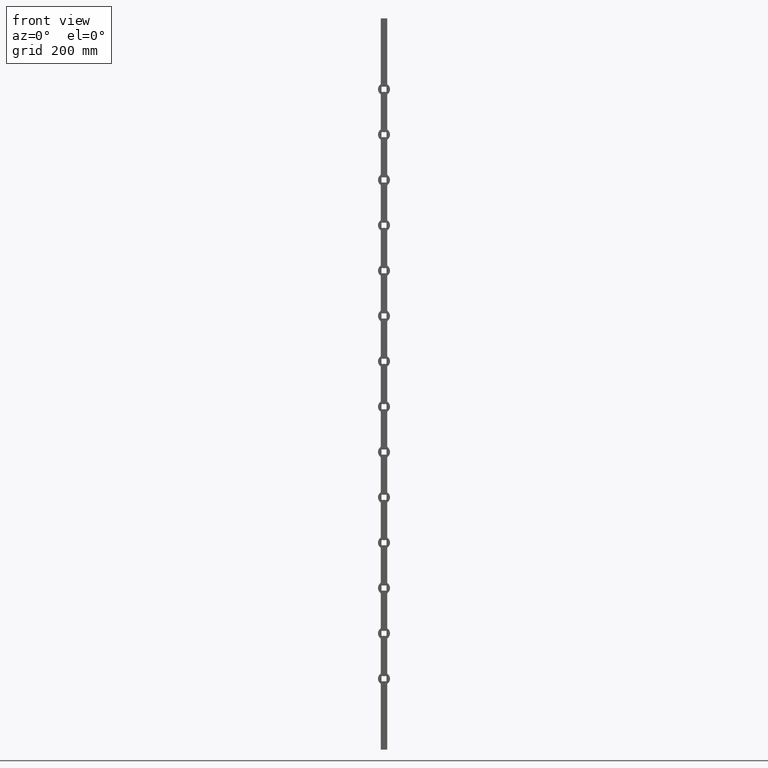
[diagram: clean part render]
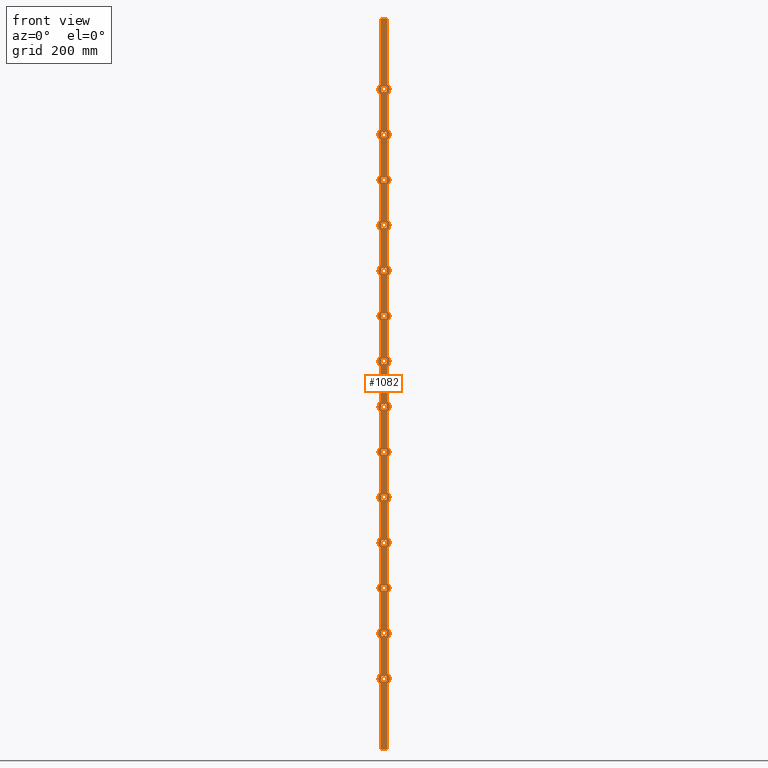
[diagram: same view with one face highlighted and labeled with its STEP entity id]
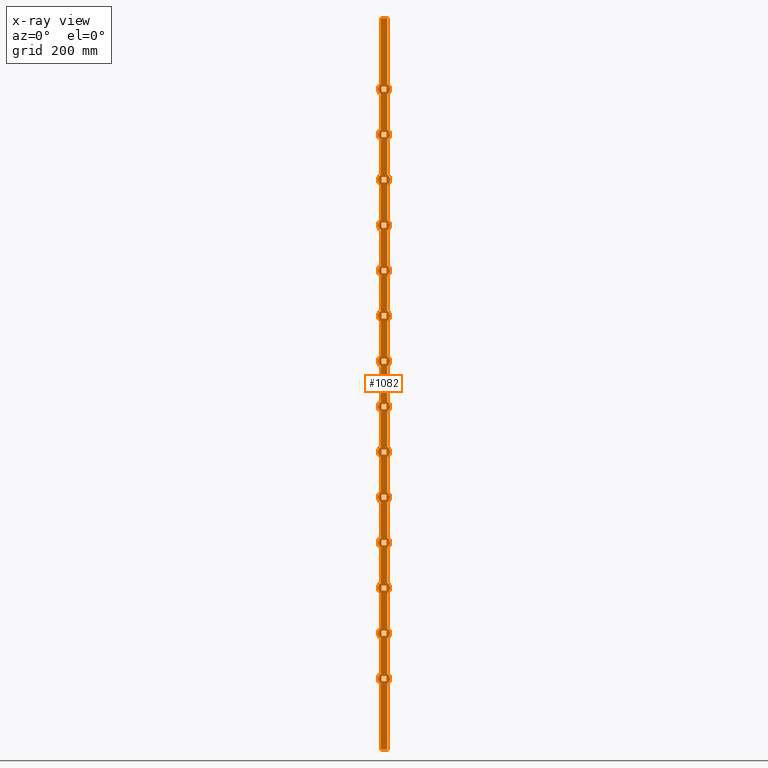
[diagram: x-ray of the same camera — body ghosted, the highlighted face saturated]
A machine part, front view. The second image highlights one B-rep face of the part: STEP entity #1082.
The next image is the same camera in x-ray: the body ghosted, the highlighted face saturated — about 0% of this face is hidden behind the body in this view.
In plain terms, the highlighted planar face has unit normal (0, 1, 0).
Its self-contained STEP definition (entity closure, byte-faithful):
#11 = ORIENTED_EDGE ( 'NONE', *, *, #8190, .F. ) ;
#18 = DIRECTION ( 'NONE',  ( 0.000000000000000000, 1.000000000000000000, 0.000000000000000000 ) ) ;
#60 = DIRECTION ( 'NONE',  ( -0.000000000000000000, -0.000000000000000000, -1.000000000000000000 ) ) ;
#88 = EDGE_CURVE ( 'NONE', #13397, #15272, #11522, .T. ) ;
#101 = ORIENTED_EDGE ( 'NONE', *, *, #1958, .T. ) ;
#102 = VERTEX_POINT ( 'NONE', #13329 ) ;
#111 = EDGE_CURVE ( 'NONE', #4666, #13441, #6414, .T. ) ;
#113 = VECTOR ( 'NONE', #4134, 1000.000000000000000 ) ;
#116 = CARTESIAN_POINT ( 'NONE',  ( -9.000000000000000000, -9.000000000000001776, 1000.000000000000000 ) ) ;
#124 = ORIENTED_EDGE ( 'NONE', *, *, #334, .T. ) ;
#146 = ORIENTED_EDGE ( 'NONE', *, *, #7471, .T. ) ;
#157 = ORIENTED_EDGE ( 'NONE', *, *, #2892, .T. ) ;
#158 = LINE ( 'NONE', #1676, #2555 ) ;
#197 = VECTOR ( 'NONE', #10739, 1000.000000000000000 ) ;
#202 = DIRECTION ( 'NONE',  ( -0.000000000000000000, -0.000000000000000000, -1.000000000000000000 ) ) ;
#204 = DIRECTION ( 'NONE',  ( 0.000000000000000000, 0.000000000000000000, 1.000000000000000000 ) ) ;
#209 = ORIENTED_EDGE ( 'NONE', *, *, #3721, .F. ) ;
#228 = LINE ( 'NONE', #12565, #10139 ) ;
#229 = EDGE_CURVE ( 'NONE', #2156, #7052, #4976, .T. ) ;
#252 = EDGE_CURVE ( 'NONE', #2583, #12673, #13240, .T. ) ;
#277 = LINE ( 'NONE', #9841, #11297 ) ;
#293 = VECTOR ( 'NONE', #4651, 1000.000000000000000 ) ;
#294 = VECTOR ( 'NONE', #4064, 1000.000000000000000 ) ;
#297 = CARTESIAN_POINT ( 'NONE',  ( -9.000000000000000000, -9.000000000000003553, 420.1706833140607387 ) ) ;
#308 = CARTESIAN_POINT ( 'NONE',  ( 0.000000000000000000, -9.000000000000000000, 806.0000000000000000 ) ) ;
#311 = VECTOR ( 'NONE', #13734, 1000.000000000000000 ) ;
#324 = CARTESIAN_POINT ( 'NONE',  ( -7.000000000000007994, -9.000000000000001776, -688.9999999999998863 ) ) ;
#334 = EDGE_CURVE ( 'NONE', #1836, #12667, #12870, .T. ) ;
#338 = EDGE_CURVE ( 'NONE', #12856, #5522, #7565, .T. ) ;
#341 = DIRECTION ( 'NONE',  ( 0.000000000000000000, 1.000000000000000000, 0.000000000000000000 ) ) ;
#347 = CARTESIAN_POINT ( 'NONE',  ( -7.000000000000006217, -9.000000000000003553, 441.0000000000000568 ) ) ;
#364 = VECTOR ( 'NONE', #4484, 1000.000000000000000 ) ;
#367 = VERTEX_POINT ( 'NONE', #14091 ) ;
#404 = EDGE_CURVE ( 'NONE', #7301, #14925, #1286, .T. ) ;
#410 = CARTESIAN_POINT ( 'NONE',  ( 0.000000000000000000, -9.000000000000000000, -185.9999999999999432 ) ) ;
#411 = CARTESIAN_POINT ( 'NONE',  ( 0.000000000000000000, -9.000000000000000000, 310.0000000000000568 ) ) ;
#420 = CARTESIAN_POINT ( 'NONE',  ( 0.000000000000000000, -9.000000000000000000, 558.0000000000000000 ) ) ;
#481 = CARTESIAN_POINT ( 'NONE',  ( 8.999999999999998224, -9.000000000000003553, -544.1706833140605113 ) ) ;
#482 = DIRECTION ( 'NONE',  ( 0.000000000000000000, 0.000000000000000000, 1.000000000000000000 ) ) ;
#488 = DIRECTION ( 'NONE',  ( 1.000000000000000000, 0.000000000000000000, 0.000000000000000000 ) ) ;
#520 = EDGE_CURVE ( 'NONE', #4937, #5486, #2931, .T. ) ;
#530 = EDGE_CURVE ( 'NONE', #3146, #7576, #6265, .T. ) ;
#532 = EDGE_LOOP ( 'NONE', ( #13744, #4095, #4790, #10079 ) ) ;
#550 = CARTESIAN_POINT ( 'NONE',  ( -9.000000000000000000, -9.000000000000003553, -323.8293166859393750 ) ) ;
#554 = ORIENTED_EDGE ( 'NONE', *, *, #404, .F. ) ;
#614 = CARTESIAN_POINT ( 'NONE',  ( 0.000000000000000000, -9.000000000000000000, -61.99999999999994316 ) ) ;
#623 = DIRECTION ( 'NONE',  ( 0.000000000000000000, 1.000000000000000000, 0.000000000000000000 ) ) ;
#662 = VERTEX_POINT ( 'NONE', #8926 ) ;
#675 = ORIENTED_EDGE ( 'NONE', *, *, #7709, .F. ) ;
#688 = CARTESIAN_POINT ( 'NONE',  ( -7.000000000000007994, -9.000000000000003553, -688.9999999999998863 ) ) ;
#699 = CARTESIAN_POINT ( 'NONE',  ( 8.999999999999998224, -9.000000000000001776, 1000.000000000000000 ) ) ;
#724 = CARTESIAN_POINT ( 'NONE',  ( -9.000000000000000000, -9.000000000000001776, 1000.000000000000000 ) ) ;
#730 = VERTEX_POINT ( 'NONE', #14895 ) ;
#755 = DIRECTION ( 'NONE',  ( -1.239088197126289831E-16, -0.000000000000000000, -1.000000000000000000 ) ) ;
#769 = LINE ( 'NONE', #699, #7424 ) ;
#803 = CARTESIAN_POINT ( 'NONE',  ( 7.000000000000006217, -9.000000000000003553, 689.0000000000000000 ) ) ;
#811 = DIRECTION ( 'NONE',  ( 0.000000000000000000, 1.000000000000000000, 0.000000000000000000 ) ) ;
#873 = EDGE_LOOP ( 'NONE', ( #5307, #14122, #13222, #12319 ) ) ;
#888 = ORIENTED_EDGE ( 'NONE', *, *, #12478, .F. ) ;
#892 = ORIENTED_EDGE ( 'NONE', *, *, #3058, .T. ) ;
#896 = CARTESIAN_POINT ( 'NONE',  ( 7.000000000000006217, -9.000000000000003553, -798.9999999999998863 ) ) ;
#925 = LINE ( 'NONE', #8470, #197 ) ;
#938 = DIRECTION ( 'NONE',  ( -0.000000000000000000, -0.000000000000000000, -1.000000000000000000 ) ) ;
#942 = ORIENTED_EDGE ( 'NONE', *, *, #7239, .T. ) ;
#946 = AXIS2_PLACEMENT_3D ( 'NONE', #12677, #3252, #15268 ) ;
#956 = DIRECTION ( 'NONE',  ( -0.000000000000000000, -0.000000000000000000, -1.000000000000000000 ) ) ;
#966 = EDGE_CURVE ( 'NONE', #4666, #9124, #14327, .T. ) ;
#983 = ORIENTED_EDGE ( 'NONE', *, *, #338, .F. ) ;
#1003 = LINE ( 'NONE', #13864, #1023 ) ;
#1015 = EDGE_CURVE ( 'NONE', #5299, #9091, #158, .T. ) ;
#1019 = CARTESIAN_POINT ( 'NONE',  ( 8.999999999999998224, -9.000000000000001776, 1000.000000000000000 ) ) ;
#1023 = VECTOR ( 'NONE', #15068, 1000.000000000000000 ) ;
#1032 = CARTESIAN_POINT ( 'NONE',  ( -9.000000000000000000, -9.000000000000001776, 1000.000000000000000 ) ) ;
#1034 = CARTESIAN_POINT ( 'NONE',  ( -7.000000000000007994, -9.000000000000003553, 303.0000000000000568 ) ) ;
#1044 = LINE ( 'NONE', #14062, #14295 ) ;
#1053 = VERTEX_POINT ( 'NONE', #8629 ) ;
#1058 = DIRECTION ( 'NONE',  ( -1.239088197126289831E-16, -0.000000000000000000, -1.000000000000000000 ) ) ;
#1064 = DIRECTION ( 'NONE',  ( 1.239088197126289831E-16, 0.000000000000000000, 1.000000000000000000 ) ) ;
#1065 = DIRECTION ( 'NONE',  ( 0.000000000000000000, 0.000000000000000000, 1.000000000000000000 ) ) ;
#1082 = ADVANCED_FACE ( 'NONE', ( #10270, #4960, #13950, #7543, #14148, #2752, #13572, #11551, #9552, #9910, #8079, #8458, #6799, #5319, #10814 ), #5228, .F. ) ;
#1085 = VERTEX_POINT ( 'NONE', #2761 ) ;
#1111 = ORIENTED_EDGE ( 'NONE', *, *, #2385, .F. ) ;
#1125 = ORIENTED_EDGE ( 'NONE', *, *, #1191, .F. ) ;
#1137 = CARTESIAN_POINT ( 'NONE',  ( 7.000000000000004441, -9.000000000000003553, -688.9999999999998863 ) ) ;
#1147 = CARTESIAN_POINT ( 'NONE',  ( -7.000000000000007994, -9.000000000000003553, -441.0000000000000568 ) ) ;
#1175 = CARTESIAN_POINT ( 'NONE',  ( 7.000000000000006217, -9.000000000000003553, 441.0000000000000568 ) ) ;
#1181 = DIRECTION ( 'NONE',  ( 1.000000000000000000, 0.000000000000000000, 0.000000000000000000 ) ) ;
#1191 = EDGE_CURVE ( 'NONE', #662, #3146, #6424, .T. ) ;
#1192 = AXIS2_PLACEMENT_3D ( 'NONE', #11989, #2528, #2677 ) ;
#1211 = ORIENTED_EDGE ( 'NONE', *, *, #6703, .T. ) ;
#1231 = EDGE_LOOP ( 'NONE', ( #3857, #1298, #1834, #14523 ) ) ;
#1274 = VECTOR ( 'NONE', #11648, 1000.000000000000000 ) ;
#1283 = CARTESIAN_POINT ( 'NONE',  ( 0.000000000000000000, -9.000000000000000000, -557.9999999999997726 ) ) ;
#1286 = CIRCLE ( 'NONE', #3973, 16.50000000000001421 ) ;
#1292 = ORIENTED_EDGE ( 'NONE', *, *, #11012, .T. ) ;
#1298 = ORIENTED_EDGE ( 'NONE', *, *, #1015, .T. ) ;
#1310 = VECTOR ( 'NONE', #8258, 1000.000000000000000 ) ;
#1319 = VERTEX_POINT ( 'NONE', #9948 ) ;
#1344 = VERTEX_POINT ( 'NONE', #9804 ) ;
#1360 = VECTOR ( 'NONE', #2540, 1000.000000000000000 ) ;
#1371 = CARTESIAN_POINT ( 'NONE',  ( -9.000000000000000000, -9.000000000000001776, 1000.000000000000000 ) ) ;
#1377 = EDGE_CURVE ( 'NONE', #11144, #9942, #4759, .T. ) ;
#1415 = DIRECTION ( 'NONE',  ( 0.000000000000000000, 1.000000000000000000, 0.000000000000000000 ) ) ;
#1433 = AXIS2_PLACEMENT_3D ( 'NONE', #2935, #12336, #13510 ) ;
#1488 = VECTOR ( 'NONE', #10371, 1000.000000000000000 ) ;
#1503 = EDGE_CURVE ( 'NONE', #1895, #10422, #4012, .T. ) ;
#1504 = CARTESIAN_POINT ( 'NONE',  ( 7.000000000000006217, -9.000000000000003553, 69.00000000000005684 ) ) ;
#1548 = VECTOR ( 'NONE', #10799, 1000.000000000000000 ) ;
#1562 = EDGE_LOOP ( 'NONE', ( #11778, #14054, #10562, #5012 ) ) ;
#1563 = EDGE_CURVE ( 'NONE', #12630, #2526, #1987, .T. ) ;
#1578 = CARTESIAN_POINT ( 'NONE',  ( 8.999999999999998224, -9.000000000000001776, 1000.000000000000000 ) ) ;
#1586 = EDGE_CURVE ( 'NONE', #5055, #12797, #13384, .T. ) ;
#1596 = VECTOR ( 'NONE', #2487, 1000.000000000000000 ) ;
#1601 = VERTEX_POINT ( 'NONE', #803 ) ;
#1671 = ORIENTED_EDGE ( 'NONE', *, *, #14495, .T. ) ;
#1676 = CARTESIAN_POINT ( 'NONE',  ( -7.000000000000007994, -9.000000000000003553, -441.0000000000000568 ) ) ;
#1688 = LINE ( 'NONE', #4538, #1310 ) ;
#1705 = CARTESIAN_POINT ( 'NONE',  ( 8.999999999999998224, -9.000000000000003553, 199.8293166859394034 ) ) ;
#1726 = EDGE_CURVE ( 'NONE', #12797, #13005, #9712, .T. ) ;
#1756 = CARTESIAN_POINT ( 'NONE',  ( 7.000000000000004441, -9.000000000000003553, -68.99999999999994316 ) ) ;
#1778 = EDGE_CURVE ( 'NONE', #12630, #730, #11530, .T. ) ;
#1780 = VECTOR ( 'NONE', #1942, 1000.000000000000000 ) ;
#1787 = AXIS2_PLACEMENT_3D ( 'NONE', #411, #2629, #204 ) ;
#1790 = ORIENTED_EDGE ( 'NONE', *, *, #14124, .T. ) ;
#1802 = EDGE_CURVE ( 'NONE', #1319, #11010, #7699, .T. ) ;
#1834 = ORIENTED_EDGE ( 'NONE', *, *, #14503, .T. ) ;
#1836 = VERTEX_POINT ( 'NONE', #8076 ) ;
#1842 = DIRECTION ( 'NONE',  ( -1.239088197126289831E-16, -0.000000000000000000, -1.000000000000000000 ) ) ;
#1847 = VECTOR ( 'NONE', #488, 1000.000000000000000 ) ;
#1895 = VERTEX_POINT ( 'NONE', #4625 ) ;
#1942 = DIRECTION ( 'NONE',  ( -1.239088197126289831E-16, -0.000000000000000000, -1.000000000000000000 ) ) ;
#1953 = LINE ( 'NONE', #688, #5845 ) ;
#1958 = EDGE_CURVE ( 'NONE', #8130, #3467, #13560, .T. ) ;
#1983 = DIRECTION ( 'NONE',  ( 1.000000000000000000, 0.000000000000000000, 0.000000000000000000 ) ) ;
#1987 = LINE ( 'NONE', #724, #12454 ) ;
#1991 = EDGE_CURVE ( 'NONE', #11149, #13238, #15030, .T. ) ;
#2019 = VERTEX_POINT ( 'NONE', #11910 ) ;
#2051 = DIRECTION ( 'NONE',  ( 1.000000000000000000, 0.000000000000000000, 0.000000000000000000 ) ) ;
#2061 = LINE ( 'NONE', #10287, #10153 ) ;
#2076 = VERTEX_POINT ( 'NONE', #6438 ) ;
#2117 = LINE ( 'NONE', #6389, #294 ) ;
#2121 = ORIENTED_EDGE ( 'NONE', *, *, #5951, .T. ) ;
#2134 = CARTESIAN_POINT ( 'NONE',  ( 7.000000000000006217, -9.000000000000003553, 813.0000000000000000 ) ) ;
#2146 = VERTEX_POINT ( 'NONE', #896 ) ;
#2156 = VERTEX_POINT ( 'NONE', #14938 ) ;
#2168 = EDGE_CURVE ( 'NONE', #3015, #1319, #14294, .T. ) ;
#2169 = ORIENTED_EDGE ( 'NONE', *, *, #8497, .F. ) ;
#2171 = DIRECTION ( 'NONE',  ( -0.000000000000000000, -0.000000000000000000, -1.000000000000000000 ) ) ;
#2173 = CARTESIAN_POINT ( 'NONE',  ( -7.000000000000007994, -9.000000000000003553, 675.0000000000000000 ) ) ;
#2200 = EDGE_CURVE ( 'NONE', #12667, #7027, #4544, .T. ) ;
#2272 = CARTESIAN_POINT ( 'NONE',  ( -7.000000000000007994, -9.000000000000001776, -68.99999999999994316 ) ) ;
#2286 = DIRECTION ( 'NONE',  ( -0.000000000000000000, -0.000000000000000000, -1.000000000000000000 ) ) ;
#2311 = ORIENTED_EDGE ( 'NONE', *, *, #3160, .F. ) ;
#2363 = VERTEX_POINT ( 'NONE', #6682 ) ;
#2385 = EDGE_CURVE ( 'NONE', #9942, #102, #5650, .T. ) ;
#2418 = AXIS2_PLACEMENT_3D ( 'NONE', #10664, #3620, #12983 ) ;
#2460 = CIRCLE ( 'NONE', #3059, 16.50000000000001421 ) ;
#2487 = DIRECTION ( 'NONE',  ( -1.000000000000000000, -0.000000000000000000, -0.000000000000000000 ) ) ;
#2493 = VECTOR ( 'NONE', #1181, 1000.000000000000000 ) ;
#2494 = VECTOR ( 'NONE', #9521, 1000.000000000000000 ) ;
#2517 = EDGE_CURVE ( 'NONE', #9342, #13542, #3599, .T. ) ;
#2522 = ORIENTED_EDGE ( 'NONE', *, *, #15076, .T. ) ;
#2526 = VERTEX_POINT ( 'NONE', #7842 ) ;
#2528 = DIRECTION ( 'NONE',  ( 0.000000000000000000, 1.000000000000000000, 0.000000000000000000 ) ) ;
#2540 = DIRECTION ( 'NONE',  ( -1.000000000000000000, -0.000000000000000000, -0.000000000000000000 ) ) ;
#2555 = VECTOR ( 'NONE', #9889, 1000.000000000000000 ) ;
#2556 = DIRECTION ( 'NONE',  ( -0.000000000000000000, -0.000000000000000000, -1.000000000000000000 ) ) ;
#2574 = DIRECTION ( 'NONE',  ( 0.000000000000000000, 1.000000000000000000, 0.000000000000000000 ) ) ;
#2583 = VERTEX_POINT ( 'NONE', #12351 ) ;
#2584 = ORIENTED_EDGE ( 'NONE', *, *, #1802, .T. ) ;
#2622 = CARTESIAN_POINT ( 'NONE',  ( -7.000000000000007994, -9.000000000000003553, 303.0000000000000568 ) ) ;
#2629 = DIRECTION ( 'NONE',  ( 0.000000000000000000, 1.000000000000000000, 0.000000000000000000 ) ) ;
#2633 = CARTESIAN_POINT ( 'NONE',  ( 8.999999999999996447, -9.000000000000000000, -447.8293166859392613 ) ) ;
#2641 = EDGE_CURVE ( 'NONE', #13238, #4721, #2871, .T. ) ;
#2674 = ORIENTED_EDGE ( 'NONE', *, *, #7613, .T. ) ;
#2675 = LINE ( 'NONE', #2721, #12411 ) ;
#2677 = DIRECTION ( 'NONE',  ( 0.000000000000000000, 0.000000000000000000, 1.000000000000000000 ) ) ;
#2683 = VECTOR ( 'NONE', #60, 1000.000000000000000 ) ;
#2687 = CIRCLE ( 'NONE', #9820, 16.50000000000000000 ) ;
#2690 = VECTOR ( 'NONE', #12528, 1000.000000000000000 ) ;
#2721 = CARTESIAN_POINT ( 'NONE',  ( 8.999999999999998224, -9.000000000000001776, 1000.000000000000000 ) ) ;
#2738 = VERTEX_POINT ( 'NONE', #4439 ) ;
#2744 = CARTESIAN_POINT ( 'NONE',  ( 8.999999999999996447, -9.000000000000000000, -199.8293166859392898 ) ) ;
#2752 = FACE_BOUND ( 'NONE', #8443, .T. ) ;
#2761 = CARTESIAN_POINT ( 'NONE',  ( 8.999999999999996447, -9.000000000000000000, 792.1706833140607387 ) ) ;
#2776 = ORIENTED_EDGE ( 'NONE', *, *, #4070, .F. ) ;
#2788 = CIRCLE ( 'NONE', #2418, 16.49999999999995737 ) ;
#2802 = CARTESIAN_POINT ( 'NONE',  ( -9.000000000000000000, -9.000000000000003553, -571.8293166859391476 ) ) ;
#2805 = CARTESIAN_POINT ( 'NONE',  ( -9.000000000000000000, -9.000000000000001776, 1000.000000000000000 ) ) ;
#2819 = VECTOR ( 'NONE', #6544, 1000.000000000000000 ) ;
#2826 = LINE ( 'NONE', #3571, #13829 ) ;
#2848 = VECTOR ( 'NONE', #7921, 1000.000000000000000 ) ;
#2856 = CARTESIAN_POINT ( 'NONE',  ( -9.000000000000000000, -9.000000000000001776, 1000.000000000000000 ) ) ;
#2869 = DIRECTION ( 'NONE',  ( -0.000000000000000000, -0.000000000000000000, -1.000000000000000000 ) ) ;
#2871 = LINE ( 'NONE', #1034, #4527 ) ;
#2883 = EDGE_CURVE ( 'NONE', #9205, #2146, #13694, .T. ) ;
#2886 = VERTEX_POINT ( 'NONE', #13016 ) ;
#2892 = EDGE_CURVE ( 'NONE', #10381, #11149, #7838, .T. ) ;
#2926 = ORIENTED_EDGE ( 'NONE', *, *, #88, .F. ) ;
#2931 = CIRCLE ( 'NONE', #7930, 16.50000000000001421 ) ;
#2935 = CARTESIAN_POINT ( 'NONE',  ( 0.000000000000000000, -9.000000000000000000, 682.0000000000000000 ) ) ;
#2940 = DIRECTION ( 'NONE',  ( 0.000000000000000000, 1.000000000000000000, 0.000000000000000000 ) ) ;
#2959 = EDGE_CURVE ( 'NONE', #13397, #3854, #13344, .T. ) ;
#2984 = CARTESIAN_POINT ( 'NONE',  ( -8.999999999999996447, -9.000000000000000000, 199.8293166859394034 ) ) ;
#3015 = VERTEX_POINT ( 'NONE', #8551 ) ;
#3022 = DIRECTION ( 'NONE',  ( 0.000000000000000000, 0.000000000000000000, 1.000000000000000000 ) ) ;
#3023 = VECTOR ( 'NONE', #1064, 1000.000000000000000 ) ;
#3027 = LINE ( 'NONE', #12622, #2848 ) ;
#3058 = EDGE_CURVE ( 'NONE', #2019, #3015, #9488, .T. ) ;
#3059 = AXIS2_PLACEMENT_3D ( 'NONE', #3824, #1415, #6046 ) ;
#3069 = CARTESIAN_POINT ( 'NONE',  ( -7.000000000000007994, -9.000000000000003553, 675.0000000000000000 ) ) ;
#3079 = VERTEX_POINT ( 'NONE', #11940 ) ;
#3086 = EDGE_CURVE ( 'NONE', #4626, #2738, #12805, .T. ) ;
#3088 = EDGE_LOOP ( 'NONE', ( #10930, #7330, #146, #1292 ) ) ;
#3146 = VERTEX_POINT ( 'NONE', #1705 ) ;
#3160 = EDGE_CURVE ( 'NONE', #11461, #14114, #14815, .T. ) ;
#3164 = AXIS2_PLACEMENT_3D ( 'NONE', #9749, #6420, #482 ) ;
#3182 = CARTESIAN_POINT ( 'NONE',  ( -7.000000000000006217, -9.000000000000003553, -54.99999999999993605 ) ) ;
#3194 = DIRECTION ( 'NONE',  ( -0.000000000000000000, -0.000000000000000000, -1.000000000000000000 ) ) ;
#3252 = DIRECTION ( 'NONE',  ( 0.000000000000000000, 1.000000000000000000, 0.000000000000000000 ) ) ;
#3274 = VERTEX_POINT ( 'NONE', #11491 ) ;
#3333 = VERTEX_POINT ( 'NONE', #5656 ) ;
#3344 = EDGE_CURVE ( 'NONE', #13542, #9205, #1003, .T. ) ;
#3354 = LINE ( 'NONE', #11682, #6510 ) ;
#3383 = CARTESIAN_POINT ( 'NONE',  ( 0.000000000000000000, -9.000000000000000000, 558.0000000000000000 ) ) ;
#3404 = VECTOR ( 'NONE', #2869, 1000.000000000000000 ) ;
#3434 = ORIENTED_EDGE ( 'NONE', *, *, #13600, .F. ) ;
#3458 = CARTESIAN_POINT ( 'NONE',  ( -7.000000000000007994, -9.000000000000003553, -688.9999999999998863 ) ) ;
#3467 = VERTEX_POINT ( 'NONE', #13430 ) ;
#3470 = AXIS2_PLACEMENT_3D ( 'NONE', #2805, #341, #7494 ) ;
#3473 = AXIS2_PLACEMENT_3D ( 'NONE', #4853, #7179, #6188 ) ;
#3476 = CARTESIAN_POINT ( 'NONE',  ( -9.000000000000000000, -9.000000000000001776, 1000.000000000000000 ) ) ;
#3492 = CARTESIAN_POINT ( 'NONE',  ( 8.999999999999998224, -9.000000000000003553, -420.1706833140606250 ) ) ;
#3500 = CARTESIAN_POINT ( 'NONE',  ( -7.000000000000006217, -9.000000000000003553, -178.9999999999999432 ) ) ;
#3530 = DIRECTION ( 'NONE',  ( -1.000000000000000000, -0.000000000000000000, -0.000000000000000000 ) ) ;
#3571 = CARTESIAN_POINT ( 'NONE',  ( -7.000000000000006217, -9.000000000000003553, 193.0000000000000568 ) ) ;
#3599 = LINE ( 'NONE', #14768, #8409 ) ;
#3602 = CARTESIAN_POINT ( 'NONE',  ( -7.000000000000007994, -9.000000000000003553, -68.99999999999994316 ) ) ;
#3606 = CARTESIAN_POINT ( 'NONE',  ( 8.999999999999998224, -9.000000000000001776, 1000.000000000000000 ) ) ;
#3618 = VECTOR ( 'NONE', #14912, 1000.000000000000000 ) ;
#3620 = DIRECTION ( 'NONE',  ( 0.000000000000000000, 1.000000000000000000, 0.000000000000000000 ) ) ;
#3621 = CARTESIAN_POINT ( 'NONE',  ( -9.000000000000000000, -9.000000000000001776, 1000.000000000000000 ) ) ;
#3647 = ORIENTED_EDGE ( 'NONE', *, *, #11766, .T. ) ;
#3654 = DIRECTION ( 'NONE',  ( 1.000000000000000000, 0.000000000000000000, 0.000000000000000000 ) ) ;
#3659 = CARTESIAN_POINT ( 'NONE',  ( -7.000000000000007994, -9.000000000000003553, -317.0000000000000568 ) ) ;
#3720 = ORIENTED_EDGE ( 'NONE', *, *, #14873, .F. ) ;
#3721 = EDGE_CURVE ( 'NONE', #9280, #11300, #13532, .T. ) ;
#3738 = DIRECTION ( 'NONE',  ( -1.239088197126289831E-16, -0.000000000000000000, -1.000000000000000000 ) ) ;
#3745 = EDGE_CURVE ( 'NONE', #11184, #2886, #8415, .T. ) ;
#3774 = VERTEX_POINT ( 'NONE', #9461 ) ;
#3778 = CARTESIAN_POINT ( 'NONE',  ( 7.000000000000004441, -9.000000000000003553, 799.0000000000000000 ) ) ;
#3790 = AXIS2_PLACEMENT_3D ( 'NONE', #7724, #9963, #11248 ) ;
#3798 = VERTEX_POINT ( 'NONE', #13362 ) ;
#3799 = LINE ( 'NONE', #116, #8406 ) ;
#3802 = LINE ( 'NONE', #5284, #7495 ) ;
#3806 = EDGE_CURVE ( 'NONE', #7052, #1085, #12067, .T. ) ;
#3822 = VERTEX_POINT ( 'NONE', #4209 ) ;
#3824 = CARTESIAN_POINT ( 'NONE',  ( 0.000000000000000000, -9.000000000000000000, -185.9999999999999432 ) ) ;
#3841 = EDGE_CURVE ( 'NONE', #7576, #12670, #5263, .T. ) ;
#3844 = VERTEX_POINT ( 'NONE', #11087 ) ;
#3854 = VERTEX_POINT ( 'NONE', #14647 ) ;
#3857 = ORIENTED_EDGE ( 'NONE', *, *, #14773, .T. ) ;
#3873 = ORIENTED_EDGE ( 'NONE', *, *, #8007, .F. ) ;
#3879 = ORIENTED_EDGE ( 'NONE', *, *, #520, .F. ) ;
#3896 = EDGE_CURVE ( 'NONE', #13625, #1601, #2117, .T. ) ;
#3910 = DIRECTION ( 'NONE',  ( 0.000000000000000000, 0.000000000000000000, 1.000000000000000000 ) ) ;
#3941 = EDGE_LOOP ( 'NONE', ( #13203, #2121, #8053, #6675 ) ) ;
#3973 = AXIS2_PLACEMENT_3D ( 'NONE', #11781, #18, #8261 ) ;
#3997 = VECTOR ( 'NONE', #15137, 1000.000000000000000 ) ;
#4012 = CIRCLE ( 'NONE', #8430, 16.50000000000000000 ) ;
#4053 = VECTOR ( 'NONE', #12921, 1000.000000000000000 ) ;
#4060 = LINE ( 'NONE', #10707, #5181 ) ;
#4064 = DIRECTION ( 'NONE',  ( 1.000000000000000000, 0.000000000000000000, 0.000000000000000000 ) ) ;
#4070 = EDGE_CURVE ( 'NONE', #11300, #10250, #11128, .T. ) ;
#4076 = CARTESIAN_POINT ( 'NONE',  ( 8.999999999999998224, -9.000000000000001776, 1000.000000000000000 ) ) ;
#4095 = ORIENTED_EDGE ( 'NONE', *, *, #12733, .T. ) ;
#4107 = VECTOR ( 'NONE', #12591, 1000.000000000000000 ) ;
#4126 = DIRECTION ( 'NONE',  ( -1.239088197126289831E-16, -0.000000000000000000, -1.000000000000000000 ) ) ;
#4131 = CARTESIAN_POINT ( 'NONE',  ( 7.000000000000004441, -9.000000000000003553, -441.0000000000000568 ) ) ;
#4134 = DIRECTION ( 'NONE',  ( -1.239088197126289831E-16, -0.000000000000000000, -1.000000000000000000 ) ) ;
#4197 = VERTEX_POINT ( 'NONE', #15150 ) ;
#4209 = CARTESIAN_POINT ( 'NONE',  ( -7.000000000000007994, -9.000000000000001776, -564.9999999999997726 ) ) ;
#4213 = CARTESIAN_POINT ( 'NONE',  ( -7.000000000000007994, -9.000000000000003553, 799.0000000000000000 ) ) ;
#4230 = VECTOR ( 'NONE', #8358, 1000.000000000000000 ) ;
#4236 = CARTESIAN_POINT ( 'NONE',  ( 0.000000000000000000, -9.000000000000000000, 434.0000000000000568 ) ) ;
#4247 = LINE ( 'NONE', #3182, #11402 ) ;
#4251 = ORIENTED_EDGE ( 'NONE', *, *, #13129, .T. ) ;
#4296 = CARTESIAN_POINT ( 'NONE',  ( 7.000000000000006217, -9.000000000000003553, 317.0000000000000568 ) ) ;
#4327 = DIRECTION ( 'NONE',  ( 1.239088197126289831E-16, 0.000000000000000000, 1.000000000000000000 ) ) ;
#4334 = ORIENTED_EDGE ( 'NONE', *, *, #7320, .T. ) ;
#4353 = EDGE_CURVE ( 'NONE', #3822, #3333, #277, .T. ) ;
#4362 = ORIENTED_EDGE ( 'NONE', *, *, #1991, .T. ) ;
#4363 = VECTOR ( 'NONE', #10410, 1000.000000000000000 ) ;
#4364 = LINE ( 'NONE', #1371, #11161 ) ;
#4371 = DIRECTION ( 'NONE',  ( -0.000000000000000000, -0.000000000000000000, -1.000000000000000000 ) ) ;
#4376 = VECTOR ( 'NONE', #13539, 1000.000000000000000 ) ;
#4401 = VERTEX_POINT ( 'NONE', #12208 ) ;
#4439 = CARTESIAN_POINT ( 'NONE',  ( 8.999999999999996447, -9.000000000000000000, -695.8293166859392613 ) ) ;
#4463 = CARTESIAN_POINT ( 'NONE',  ( -7.000000000000007994, -9.000000000000003553, 551.0000000000000000 ) ) ;
#4467 = DIRECTION ( 'NONE',  ( 0.000000000000000000, 1.000000000000000000, 0.000000000000000000 ) ) ;
#4470 = CARTESIAN_POINT ( 'NONE',  ( 7.000000000000004441, -9.000000000000003553, -564.9999999999997726 ) ) ;
#4484 = DIRECTION ( 'NONE',  ( -0.000000000000000000, -0.000000000000000000, -1.000000000000000000 ) ) ;
#4486 = VECTOR ( 'NONE', #1983, 1000.000000000000000 ) ;
#4511 = AXIS2_PLACEMENT_3D ( 'NONE', #7393, #10738, #8513 ) ;
#4515 = VECTOR ( 'NONE', #10762, 1000.000000000000000 ) ;
#4527 = VECTOR ( 'NONE', #9065, 1000.000000000000000 ) ;
#4528 = CIRCLE ( 'NONE', #4511, 16.49999999999995737 ) ;
#4538 = CARTESIAN_POINT ( 'NONE',  ( -7.000000000000006217, -9.000000000000003553, 69.00000000000005684 ) ) ;
#4544 = LINE ( 'NONE', #5505, #9329 ) ;
#4550 = LINE ( 'NONE', #10367, #3618 ) ;
#4573 = ORIENTED_EDGE ( 'NONE', *, *, #6315, .F. ) ;
#4576 = EDGE_CURVE ( 'NONE', #15275, #7041, #13881, .T. ) ;
#4611 = ORIENTED_EDGE ( 'NONE', *, *, #6866, .F. ) ;
#4612 = VERTEX_POINT ( 'NONE', #13100 ) ;
#4625 = CARTESIAN_POINT ( 'NONE',  ( 8.999999999999998224, -9.000000000000003553, -48.17068331406060366 ) ) ;
#4626 = VERTEX_POINT ( 'NONE', #7217 ) ;
#4642 = CIRCLE ( 'NONE', #1787, 16.50000000000001421 ) ;
#4651 = DIRECTION ( 'NONE',  ( -1.000000000000000000, -0.000000000000000000, -0.000000000000000000 ) ) ;
#4661 = DIRECTION ( 'NONE',  ( -1.239088197126289831E-16, -0.000000000000000000, -1.000000000000000000 ) ) ;
#4666 = VERTEX_POINT ( 'NONE', #297 ) ;
#4672 = LINE ( 'NONE', #2173, #1360 ) ;
#4692 = AXIS2_PLACEMENT_3D ( 'NONE', #13486, #13334, #10965 ) ;
#4704 = VECTOR ( 'NONE', #9585, 1000.000000000000000 ) ;
#4721 = VERTEX_POINT ( 'NONE', #6290 ) ;
#4725 = LINE ( 'NONE', #4076, #7124 ) ;
#4748 = ORIENTED_EDGE ( 'NONE', *, *, #8319, .T. ) ;
#4759 = LINE ( 'NONE', #5144, #4376 ) ;
#4765 = VERTEX_POINT ( 'NONE', #9854 ) ;
#4766 = EDGE_CURVE ( 'NONE', #10998, #4197, #10656, .T. ) ;
#4779 = DIRECTION ( 'NONE',  ( 1.000000000000000000, 0.000000000000000000, 0.000000000000000000 ) ) ;
#4790 = ORIENTED_EDGE ( 'NONE', *, *, #10149, .T. ) ;
#4851 = CIRCLE ( 'NONE', #1192, 16.50000000000001421 ) ;
#4853 = CARTESIAN_POINT ( 'NONE',  ( 0.000000000000000000, -9.000000000000000000, 62.00000000000005684 ) ) ;
#4937 = VERTEX_POINT ( 'NONE', #10555 ) ;
#4954 = DIRECTION ( 'NONE',  ( -0.000000000000000000, -0.000000000000000000, -1.000000000000000000 ) ) ;
#4960 = FACE_BOUND ( 'NONE', #3941, .T. ) ;
#4976 = LINE ( 'NONE', #9024, #364 ) ;
#5012 = ORIENTED_EDGE ( 'NONE', *, *, #14193, .T. ) ;
#5019 = LINE ( 'NONE', #11967, #14197 ) ;
#5044 = EDGE_CURVE ( 'NONE', #7657, #6155, #14550, .T. ) ;
#5055 = VERTEX_POINT ( 'NONE', #3778 ) ;
#5059 = DIRECTION ( 'NONE',  ( 0.000000000000000000, 1.000000000000000000, 0.000000000000000000 ) ) ;
#5092 = LINE ( 'NONE', #9534, #12975 ) ;
#5101 = ORIENTED_EDGE ( 'NONE', *, *, #8274, .T. ) ;
#5110 = LINE ( 'NONE', #14978, #10961 ) ;
#5112 = CARTESIAN_POINT ( 'NONE',  ( 8.999999999999996447, -9.000000000000000000, -323.8293166859393750 ) ) ;
#5119 = DIRECTION ( 'NONE',  ( -0.000000000000000000, -0.000000000000000000, -1.000000000000000000 ) ) ;
#5144 = CARTESIAN_POINT ( 'NONE',  ( 8.999999999999998224, -9.000000000000001776, 1000.000000000000000 ) ) ;
#5181 = VECTOR ( 'NONE', #9447, 1000.000000000000000 ) ;
#5182 = ORIENTED_EDGE ( 'NONE', *, *, #7872, .F. ) ;
#5211 = CARTESIAN_POINT ( 'NONE',  ( 0.000000000000000000, -9.000000000000000000, -681.9999999999998863 ) ) ;
#5223 = LINE ( 'NONE', #6759, #4107 ) ;
#5228 = PLANE ( 'NONE',  #3470 ) ;
#5238 = LINE ( 'NONE', #10353, #4486 ) ;
#5255 = CARTESIAN_POINT ( 'NONE',  ( -7.000000000000007994, -9.000000000000003553, 427.0000000000000568 ) ) ;
#5263 = LINE ( 'NONE', #11045, #3404 ) ;
#5266 = AXIS2_PLACEMENT_3D ( 'NONE', #10326, #9157, #9216 ) ;
#5267 = ORIENTED_EDGE ( 'NONE', *, *, #6989, .T. ) ;
#5284 = CARTESIAN_POINT ( 'NONE',  ( -7.000000000000006217, -9.000000000000003553, -550.9999999999996589 ) ) ;
#5290 = VECTOR ( 'NONE', #5945, 1000.000000000000000 ) ;
#5291 = AXIS2_PLACEMENT_3D ( 'NONE', #420, #5059, #9670 ) ;
#5299 = VERTEX_POINT ( 'NONE', #4131 ) ;
#5307 = ORIENTED_EDGE ( 'NONE', *, *, #7924, .T. ) ;
#5318 = ORIENTED_EDGE ( 'NONE', *, *, #4766, .T. ) ;
#5319 = FACE_BOUND ( 'NONE', #9165, .T. ) ;
#5336 = CARTESIAN_POINT ( 'NONE',  ( 7.000000000000004441, -9.000000000000003553, -68.99999999999994316 ) ) ;
#5351 = VERTEX_POINT ( 'NONE', #15031 ) ;
#5355 = ORIENTED_EDGE ( 'NONE', *, *, #111, .F. ) ;
#5425 = VERTEX_POINT ( 'NONE', #10502 ) ;
#5467 = CARTESIAN_POINT ( 'NONE',  ( 8.999999999999998224, -9.000000000000003553, 571.8293166859393750 ) ) ;
#5485 = VECTOR ( 'NONE', #755, 1000.000000000000000 ) ;
#5486 = VERTEX_POINT ( 'NONE', #2744 ) ;
#5505 = CARTESIAN_POINT ( 'NONE',  ( -9.000000000000000000, -9.000000000000001776, -1000.000000000000000 ) ) ;
#5506 = DIRECTION ( 'NONE',  ( 1.239088197126289831E-16, 0.000000000000000000, 1.000000000000000000 ) ) ;
#5511 = VECTOR ( 'NONE', #4954, 1000.000000000000000 ) ;
#5522 = VERTEX_POINT ( 'NONE', #12091 ) ;
#5532 = ORIENTED_EDGE ( 'NONE', *, *, #6594, .T. ) ;
#5543 = VERTEX_POINT ( 'NONE', #324 ) ;
#5553 = DIRECTION ( 'NONE',  ( 1.000000000000000000, 0.000000000000000000, 0.000000000000000000 ) ) ;
#5554 = EDGE_CURVE ( 'NONE', #6882, #3798, #10638, .T. ) ;
#5646 = CARTESIAN_POINT ( 'NONE',  ( 8.999999999999998224, -9.000000000000001776, 1000.000000000000000 ) ) ;
#5650 = CIRCLE ( 'NONE', #10476, 16.49999999999995737 ) ;
#5652 = LINE ( 'NONE', #4470, #1780 ) ;
#5656 = CARTESIAN_POINT ( 'NONE',  ( -7.000000000000006217, -9.000000000000003553, -550.9999999999996589 ) ) ;
#5734 = EDGE_CURVE ( 'NONE', #11182, #3079, #7545, .T. ) ;
#5750 = DIRECTION ( 'NONE',  ( -1.239088197126289831E-16, -0.000000000000000000, -1.000000000000000000 ) ) ;
#5845 = VECTOR ( 'NONE', #13491, 1000.000000000000000 ) ;
#5852 = ORIENTED_EDGE ( 'NONE', *, *, #7062, .T. ) ;
#5923 = VERTEX_POINT ( 'NONE', #12997 ) ;
#5938 = ORIENTED_EDGE ( 'NONE', *, *, #8601, .F. ) ;
#5945 = DIRECTION ( 'NONE',  ( 1.239088197126289831E-16, 0.000000000000000000, 1.000000000000000000 ) ) ;
#5951 = EDGE_CURVE ( 'NONE', #10349, #5055, #9364, .T. ) ;
#5953 = VECTOR ( 'NONE', #3654, 1000.000000000000000 ) ;
#5979 = CARTESIAN_POINT ( 'NONE',  ( 7.000000000000004441, -9.000000000000003553, 303.0000000000000568 ) ) ;
#5998 = DIRECTION ( 'NONE',  ( -1.000000000000000000, -0.000000000000000000, -0.000000000000000000 ) ) ;
#6040 = VECTOR ( 'NONE', #938, 1000.000000000000000 ) ;
#6046 = DIRECTION ( 'NONE',  ( 0.000000000000000000, 0.000000000000000000, 1.000000000000000000 ) ) ;
#6062 = CARTESIAN_POINT ( 'NONE',  ( 8.999999999999998224, -9.000000000000003553, 819.8293166859393750 ) ) ;
#6063 = VECTOR ( 'NONE', #8854, 1000.000000000000000 ) ;
#6085 = CIRCLE ( 'NONE', #5266, 16.50000000000001421 ) ;
#6093 = CARTESIAN_POINT ( 'NONE',  ( -9.000000000000000000, -9.000000000000001776, 1000.000000000000000 ) ) ;
#6095 = CARTESIAN_POINT ( 'NONE',  ( 7.000000000000004441, -9.000000000000003553, -441.0000000000000568 ) ) ;
#6129 = EDGE_CURVE ( 'NONE', #11450, #9352, #8641, .T. ) ;
#6155 = VERTEX_POINT ( 'NONE', #15207 ) ;
#6182 = LINE ( 'NONE', #14865, #1488 ) ;
#6184 = ORIENTED_EDGE ( 'NONE', *, *, #3745, .F. ) ;
#6188 = DIRECTION ( 'NONE',  ( 0.000000000000000000, 0.000000000000000000, 1.000000000000000000 ) ) ;
#6226 = ORIENTED_EDGE ( 'NONE', *, *, #1778, .F. ) ;
#6265 = CIRCLE ( 'NONE', #9497, 16.50000000000001421 ) ;
#6290 = CARTESIAN_POINT ( 'NONE',  ( -7.000000000000006217, -9.000000000000003553, 317.0000000000000568 ) ) ;
#6315 = EDGE_CURVE ( 'NONE', #8609, #3079, #13936, .T. ) ;
#6341 = DIRECTION ( 'NONE',  ( 0.000000000000000000, 1.000000000000000000, 0.000000000000000000 ) ) ;
#6366 = VECTOR ( 'NONE', #956, 1000.000000000000000 ) ;
#6375 = CARTESIAN_POINT ( 'NONE',  ( 7.000000000000004441, -9.000000000000003553, 427.0000000000000568 ) ) ;
#6381 = CARTESIAN_POINT ( 'NONE',  ( -7.000000000000007994, -9.000000000000003553, -68.99999999999994316 ) ) ;
#6389 = CARTESIAN_POINT ( 'NONE',  ( -7.000000000000006217, -9.000000000000003553, 689.0000000000000000 ) ) ;
#6412 = LINE ( 'NONE', #9006, #7319 ) ;
#6414 = CIRCLE ( 'NONE', #7147, 16.50000000000001421 ) ;
#6420 = DIRECTION ( 'NONE',  ( 0.000000000000000000, 1.000000000000000000, 0.000000000000000000 ) ) ;
#6424 = LINE ( 'NONE', #11919, #6605 ) ;
#6438 = CARTESIAN_POINT ( 'NONE',  ( 7.000000000000006217, -9.000000000000003553, -54.99999999999993605 ) ) ;
#6452 = VERTEX_POINT ( 'NONE', #8916 ) ;
#6468 = CARTESIAN_POINT ( 'NONE',  ( -7.000000000000007994, -9.000000000000001776, -192.9999999999999432 ) ) ;
#6498 = CARTESIAN_POINT ( 'NONE',  ( -9.000000000000000000, -9.000000000000001776, -1000.000000000000000 ) ) ;
#6510 = VECTOR ( 'NONE', #4661, 1000.000000000000000 ) ;
#6515 = DIRECTION ( 'NONE',  ( -1.000000000000000000, -0.000000000000000000, -0.000000000000000000 ) ) ;
#6544 = DIRECTION ( 'NONE',  ( 1.239088197126289831E-16, 0.000000000000000000, 1.000000000000000000 ) ) ;
#6594 = EDGE_CURVE ( 'NONE', #4765, #2886, #9163, .T. ) ;
#6604 = ORIENTED_EDGE ( 'NONE', *, *, #14901, .F. ) ;
#6605 = VECTOR ( 'NONE', #202, 1000.000000000000000 ) ;
#6662 = VERTEX_POINT ( 'NONE', #7186 ) ;
#6663 = CIRCLE ( 'NONE', #3473, 16.50000000000000000 ) ;
#6675 = ORIENTED_EDGE ( 'NONE', *, *, #1726, .T. ) ;
#6682 = CARTESIAN_POINT ( 'NONE',  ( 8.999999999999998224, -9.000000000000003553, 695.8293166859393750 ) ) ;
#6700 = ORIENTED_EDGE ( 'NONE', *, *, #2959, .T. ) ;
#6703 = EDGE_CURVE ( 'NONE', #10633, #11450, #6412, .T. ) ;
#6757 = EDGE_CURVE ( 'NONE', #8256, #5351, #5652, .T. ) ;
#6759 = CARTESIAN_POINT ( 'NONE',  ( -7.000000000000006217, -9.000000000000003553, -427.0000000000000568 ) ) ;
#6799 = FACE_BOUND ( 'NONE', #8846, .T. ) ;
#6806 = EDGE_CURVE ( 'NONE', #5425, #3844, #4550, .T. ) ;
#6809 = CARTESIAN_POINT ( 'NONE',  ( 0.000000000000000000, -9.000000000000000000, -806.0000000000000000 ) ) ;
#6857 = CARTESIAN_POINT ( 'NONE',  ( -9.000000000000000000, -9.000000000000003553, 668.1706833140607387 ) ) ;
#6866 = EDGE_CURVE ( 'NONE', #10250, #11144, #10788, .T. ) ;
#6882 = VERTEX_POINT ( 'NONE', #12564 ) ;
#6913 = EDGE_CURVE ( 'NONE', #4401, #2583, #1044, .T. ) ;
#6972 = CARTESIAN_POINT ( 'NONE',  ( -7.000000000000007994, -9.000000000000003553, -192.9999999999999432 ) ) ;
#6978 = CARTESIAN_POINT ( 'NONE',  ( -7.000000000000006217, -9.000000000000003553, -798.9999999999998863 ) ) ;
#6989 = EDGE_CURVE ( 'NONE', #2146, #9342, #11898, .T. ) ;
#7003 = CARTESIAN_POINT ( 'NONE',  ( 7.000000000000004441, -9.000000000000003553, -688.9999999999998863 ) ) ;
#7012 = LINE ( 'NONE', #6093, #4230 ) ;
#7027 = VERTEX_POINT ( 'NONE', #10612 ) ;
#7041 = VERTEX_POINT ( 'NONE', #8435 ) ;
#7052 = VERTEX_POINT ( 'NONE', #6062 ) ;
#7062 = EDGE_CURVE ( 'NONE', #8609, #3274, #4364, .T. ) ;
#7081 = CARTESIAN_POINT ( 'NONE',  ( -8.999999999999996447, -9.000000000000000000, 447.8293166859393750 ) ) ;
#7094 = CARTESIAN_POINT ( 'NONE',  ( -9.000000000000000000, -9.000000000000003553, 544.1706833140607387 ) ) ;
#7104 = LINE ( 'NONE', #3476, #6366 ) ;
#7124 = VECTOR ( 'NONE', #5119, 1000.000000000000000 ) ;
#7136 = ORIENTED_EDGE ( 'NONE', *, *, #1503, .F. ) ;
#7147 = AXIS2_PLACEMENT_3D ( 'NONE', #4236, #623, #14621 ) ;
#7179 = DIRECTION ( 'NONE',  ( 0.000000000000000000, 1.000000000000000000, 0.000000000000000000 ) ) ;
#7186 = CARTESIAN_POINT ( 'NONE',  ( -9.000000000000000000, -9.000000000000003553, 296.1706833140607387 ) ) ;
#7188 = DIRECTION ( 'NONE',  ( -1.000000000000000000, -0.000000000000000000, -0.000000000000000000 ) ) ;
#7195 = EDGE_CURVE ( 'NONE', #5543, #10633, #1953, .T. ) ;
#7217 = CARTESIAN_POINT ( 'NONE',  ( 8.999999999999998224, -9.000000000000003553, -668.1706833140606250 ) ) ;
#7239 = EDGE_CURVE ( 'NONE', #2076, #12140, #12443, .T. ) ;
#7295 = VERTEX_POINT ( 'NONE', #10135 ) ;
#7301 = VERTEX_POINT ( 'NONE', #11318 ) ;
#7308 = ORIENTED_EDGE ( 'NONE', *, *, #966, .T. ) ;
#7319 = VECTOR ( 'NONE', #2051, 1000.000000000000000 ) ;
#7320 = EDGE_CURVE ( 'NONE', #3333, #8256, #3802, .T. ) ;
#7330 = ORIENTED_EDGE ( 'NONE', *, *, #10932, .T. ) ;
#7338 = VECTOR ( 'NONE', #3738, 1000.000000000000000 ) ;
#7393 = CARTESIAN_POINT ( 'NONE',  ( 0.000000000000000000, -9.000000000000000000, -806.0000000000000000 ) ) ;
#7424 = VECTOR ( 'NONE', #3194, 1000.000000000000000 ) ;
#7426 = DIRECTION ( 'NONE',  ( 0.000000000000000000, 1.000000000000000000, 0.000000000000000000 ) ) ;
#7432 = LINE ( 'NONE', #3500, #10891 ) ;
#7471 = EDGE_CURVE ( 'NONE', #9123, #9117, #5110, .T. ) ;
#7494 = DIRECTION ( 'NONE',  ( 0.000000000000000000, -0.000000000000000000, 1.000000000000000000 ) ) ;
#7495 = VECTOR ( 'NONE', #14633, 1000.000000000000000 ) ;
#7502 = DIRECTION ( 'NONE',  ( 1.239088197126289831E-16, 0.000000000000000000, 1.000000000000000000 ) ) ;
#7507 = ORIENTED_EDGE ( 'NONE', *, *, #8944, .T. ) ;
#7521 = EDGE_CURVE ( 'NONE', #10221, #6882, #10217, .T. ) ;
#7543 = FACE_BOUND ( 'NONE', #12765, .T. ) ;
#7545 = LINE ( 'NONE', #12795, #1274 ) ;
#7562 = DIRECTION ( 'NONE',  ( 1.000000000000000000, 0.000000000000000000, 0.000000000000000000 ) ) ;
#7565 = CIRCLE ( 'NONE', #14526, 16.49999999999995737 ) ;
#7569 = ORIENTED_EDGE ( 'NONE', *, *, #530, .F. ) ;
#7576 = VERTEX_POINT ( 'NONE', #8203 ) ;
#7613 = EDGE_CURVE ( 'NONE', #11010, #2019, #10576, .T. ) ;
#7628 = ORIENTED_EDGE ( 'NONE', *, *, #3806, .F. ) ;
#7657 = VERTEX_POINT ( 'NONE', #8469 ) ;
#7679 = DIRECTION ( 'NONE',  ( 0.000000000000000000, 1.000000000000000000, 0.000000000000000000 ) ) ;
#7699 = LINE ( 'NONE', #15118, #4363 ) ;
#7709 = EDGE_CURVE ( 'NONE', #13411, #5923, #4528, .T. ) ;
#7716 = ORIENTED_EDGE ( 'NONE', *, *, #5044, .T. ) ;
#7722 = VECTOR ( 'NONE', #1058, 1000.000000000000000 ) ;
#7724 = CARTESIAN_POINT ( 'NONE',  ( 0.000000000000000000, -9.000000000000000000, 806.0000000000000000 ) ) ;
#7736 = EDGE_CURVE ( 'NONE', #5351, #3822, #5092, .T. ) ;
#7740 = DIRECTION ( 'NONE',  ( -1.239088197126289831E-16, -0.000000000000000000, -1.000000000000000000 ) ) ;
#7808 = DIRECTION ( 'NONE',  ( -0.000000000000000000, -0.000000000000000000, -1.000000000000000000 ) ) ;
#7824 = EDGE_CURVE ( 'NONE', #1344, #13538, #7841, .T. ) ;
#7827 = VECTOR ( 'NONE', #7562, 1000.000000000000000 ) ;
#7838 = LINE ( 'NONE', #5979, #9673 ) ;
#7841 = CIRCLE ( 'NONE', #14848, 16.50000000000001421 ) ;
#7842 = CARTESIAN_POINT ( 'NONE',  ( -9.000000000000000000, -9.000000000000000000, -48.17068331406061077 ) ) ;
#7852 = LINE ( 'NONE', #6095, #9326 ) ;
#7872 = EDGE_CURVE ( 'NONE', #7657, #2526, #2687, .T. ) ;
#7873 = ORIENTED_EDGE ( 'NONE', *, *, #13916, .F. ) ;
#7894 = CARTESIAN_POINT ( 'NONE',  ( -7.000000000000007994, -9.000000000000003553, 55.00000000000004974 ) ) ;
#7921 = DIRECTION ( 'NONE',  ( -0.000000000000000000, -0.000000000000000000, -1.000000000000000000 ) ) ;
#7924 = EDGE_CURVE ( 'NONE', #11187, #4401, #9850, .T. ) ;
#7930 = AXIS2_PLACEMENT_3D ( 'NONE', #410, #10982, #13413 ) ;
#7937 = CARTESIAN_POINT ( 'NONE',  ( -7.000000000000007994, -9.000000000000003553, 799.0000000000000000 ) ) ;
#8006 = CARTESIAN_POINT ( 'NONE',  ( -7.000000000000006217, -9.000000000000003553, -303.0000000000000568 ) ) ;
#8007 = EDGE_CURVE ( 'NONE', #1836, #3854, #8033, .T. ) ;
#8022 = VECTOR ( 'NONE', #14142, 1000.000000000000000 ) ;
#8033 = CIRCLE ( 'NONE', #11396, 16.49999999999995737 ) ;
#8042 = LINE ( 'NONE', #1147, #5290 ) ;
#8053 = ORIENTED_EDGE ( 'NONE', *, *, #1586, .T. ) ;
#8060 = VECTOR ( 'NONE', #5506, 1000.000000000000000 ) ;
#8076 = CARTESIAN_POINT ( 'NONE',  ( -9.000000000000000000, -9.000000000000003553, -819.8293166859393750 ) ) ;
#8079 = FACE_BOUND ( 'NONE', #14506, .T. ) ;
#8117 = VECTOR ( 'NONE', #14546, 1000.000000000000000 ) ;
#8130 = VERTEX_POINT ( 'NONE', #10328 ) ;
#8161 = CARTESIAN_POINT ( 'NONE',  ( 8.999999999999996447, -9.000000000000000000, -75.82931668593928975 ) ) ;
#8185 = CARTESIAN_POINT ( 'NONE',  ( 7.000000000000004441, -9.000000000000003553, -813.0000000000000000 ) ) ;
#8190 = EDGE_CURVE ( 'NONE', #6452, #15275, #13516, .T. ) ;
#8203 = CARTESIAN_POINT ( 'NONE',  ( 8.999999999999996447, -9.000000000000000000, 172.1706833140607102 ) ) ;
#8227 = VERTEX_POINT ( 'NONE', #1175 ) ;
#8244 = CARTESIAN_POINT ( 'NONE',  ( -7.000000000000007994, -9.000000000000003553, 551.0000000000000000 ) ) ;
#8252 = ORIENTED_EDGE ( 'NONE', *, *, #5734, .T. ) ;
#8256 = VERTEX_POINT ( 'NONE', #14031 ) ;
#8258 = DIRECTION ( 'NONE',  ( 1.000000000000000000, 0.000000000000000000, 0.000000000000000000 ) ) ;
#8261 = DIRECTION ( 'NONE',  ( 0.000000000000000000, 0.000000000000000000, 1.000000000000000000 ) ) ;
#8274 = EDGE_CURVE ( 'NONE', #4612, #3774, #9109, .T. ) ;
#8297 = DIRECTION ( 'NONE',  ( 0.000000000000000000, 0.000000000000000000, 1.000000000000000000 ) ) ;
#8306 = VECTOR ( 'NONE', #2556, 1000.000000000000000 ) ;
#8308 = ORIENTED_EDGE ( 'NONE', *, *, #6806, .T. ) ;
#8313 = DIRECTION ( 'NONE',  ( 0.000000000000000000, 0.000000000000000000, 1.000000000000000000 ) ) ;
#8319 = EDGE_CURVE ( 'NONE', #3774, #14026, #14638, .T. ) ;
#8358 = DIRECTION ( 'NONE',  ( -0.000000000000000000, -0.000000000000000000, -1.000000000000000000 ) ) ;
#8406 = VECTOR ( 'NONE', #2286, 1000.000000000000000 ) ;
#8409 = VECTOR ( 'NONE', #6515, 1000.000000000000000 ) ;
#8415 = CIRCLE ( 'NONE', #14341, 16.49999999999995737 ) ;
#8421 = LINE ( 'NONE', #3602, #3997 ) ;
#8430 = AXIS2_PLACEMENT_3D ( 'NONE', #10213, #12493, #11293 ) ;
#8435 = CARTESIAN_POINT ( 'NONE',  ( 8.999999999999996447, -9.000000000000000000, 544.1706833140607387 ) ) ;
#8443 = EDGE_LOOP ( 'NONE', ( #157, #4362, #11216, #12731 ) ) ;
#8458 = FACE_BOUND ( 'NONE', #1231, .T. ) ;
#8469 = CARTESIAN_POINT ( 'NONE',  ( -9.000000000000000000, -9.000000000000003553, -75.82931668593928975 ) ) ;
#8470 = CARTESIAN_POINT ( 'NONE',  ( -9.000000000000000000, -9.000000000000001776, 1000.000000000000000 ) ) ;
#8477 = VECTOR ( 'NONE', #13550, 1000.000000000000000 ) ;
#8497 = EDGE_CURVE ( 'NONE', #5486, #9280, #15001, .T. ) ;
#8513 = DIRECTION ( 'NONE',  ( 0.000000000000000000, 0.000000000000000000, 1.000000000000000000 ) ) ;
#8551 = CARTESIAN_POINT ( 'NONE',  ( -7.000000000000006217, -9.000000000000003553, -303.0000000000000568 ) ) ;
#8556 = ORIENTED_EDGE ( 'NONE', *, *, #12828, .F. ) ;
#8560 = CARTESIAN_POINT ( 'NONE',  ( 8.999999999999998224, -9.000000000000001776, 1000.000000000000000 ) ) ;
#8595 = ORIENTED_EDGE ( 'NONE', *, *, #2168, .T. ) ;
#8597 = VECTOR ( 'NONE', #11835, 1000.000000000000000 ) ;
#8601 = EDGE_CURVE ( 'NONE', #4765, #2156, #10927, .T. ) ;
#8604 = EDGE_CURVE ( 'NONE', #8227, #10221, #14066, .T. ) ;
#8609 = VERTEX_POINT ( 'NONE', #550 ) ;
#8629 = CARTESIAN_POINT ( 'NONE',  ( 8.999999999999998224, -9.000000000000003553, 323.8293166859393750 ) ) ;
#8641 = LINE ( 'NONE', #7003, #7722 ) ;
#8797 = ORIENTED_EDGE ( 'NONE', *, *, #11727, .F. ) ;
#8842 = ORIENTED_EDGE ( 'NONE', *, *, #6757, .T. ) ;
#8846 = EDGE_LOOP ( 'NONE', ( #8842, #10837, #9372, #4334 ) ) ;
#8854 = DIRECTION ( 'NONE',  ( 1.239088197126289831E-16, 0.000000000000000000, 1.000000000000000000 ) ) ;
#8889 = CARTESIAN_POINT ( 'NONE',  ( 7.000000000000004441, -9.000000000000003553, 799.0000000000000000 ) ) ;
#8916 = CARTESIAN_POINT ( 'NONE',  ( 8.999999999999996447, -9.000000000000000000, 668.1706833140607387 ) ) ;
#8926 = CARTESIAN_POINT ( 'NONE',  ( 8.999999999999996447, -9.000000000000000000, 296.1706833140607387 ) ) ;
#8944 = EDGE_CURVE ( 'NONE', #12856, #13441, #925, .T. ) ;
#8953 = CARTESIAN_POINT ( 'NONE',  ( -7.000000000000006217, -9.000000000000003553, -178.9999999999999432 ) ) ;
#8963 = CARTESIAN_POINT ( 'NONE',  ( -9.000000000000000000, -9.000000000000001776, 1000.000000000000000 ) ) ;
#9005 = VECTOR ( 'NONE', #4327, 1000.000000000000000 ) ;
#9006 = CARTESIAN_POINT ( 'NONE',  ( -7.000000000000006217, -9.000000000000003553, -674.9999999999997726 ) ) ;
#9017 = DIRECTION ( 'NONE',  ( -0.000000000000000000, -0.000000000000000000, -1.000000000000000000 ) ) ;
#9024 = CARTESIAN_POINT ( 'NONE',  ( 8.999999999999998224, -9.000000000000001776, 1000.000000000000000 ) ) ;
#9051 = ORIENTED_EDGE ( 'NONE', *, *, #11544, .F. ) ;
#9062 = LINE ( 'NONE', #3069, #2819 ) ;
#9065 = DIRECTION ( 'NONE',  ( 1.239088197126289831E-16, 0.000000000000000000, 1.000000000000000000 ) ) ;
#9091 = VERTEX_POINT ( 'NONE', #12237 ) ;
#9109 = LINE ( 'NONE', #8244, #8022 ) ;
#9117 = VERTEX_POINT ( 'NONE', #8953 ) ;
#9123 = VERTEX_POINT ( 'NONE', #6468 ) ;
#9124 = VERTEX_POINT ( 'NONE', #11296 ) ;
#9143 = ORIENTED_EDGE ( 'NONE', *, *, #13774, .F. ) ;
#9157 = DIRECTION ( 'NONE',  ( 0.000000000000000000, 1.000000000000000000, 0.000000000000000000 ) ) ;
#9163 = LINE ( 'NONE', #13786, #6040 ) ;
#9165 = EDGE_LOOP ( 'NONE', ( #9214, #2522, #14493, #1211 ) ) ;
#9181 = EDGE_CURVE ( 'NONE', #12291, #1895, #10803, .T. ) ;
#9205 = VERTEX_POINT ( 'NONE', #13868 ) ;
#9214 = ORIENTED_EDGE ( 'NONE', *, *, #6129, .T. ) ;
#9215 = EDGE_CURVE ( 'NONE', #7041, #7301, #6182, .T. ) ;
#9216 = DIRECTION ( 'NONE',  ( 0.000000000000000000, 0.000000000000000000, 1.000000000000000000 ) ) ;
#9280 = VERTEX_POINT ( 'NONE', #15126 ) ;
#9288 = ORIENTED_EDGE ( 'NONE', *, *, #15053, .F. ) ;
#9302 = VERTEX_POINT ( 'NONE', #15165 ) ;
#9326 = VECTOR ( 'NONE', #13284, 1000.000000000000000 ) ;
#9329 = VECTOR ( 'NONE', #5553, 1000.000000000000000 ) ;
#9342 = VERTEX_POINT ( 'NONE', #8185 ) ;
#9352 = VERTEX_POINT ( 'NONE', #1137 ) ;
#9364 = LINE ( 'NONE', #8889, #10073 ) ;
#9372 = ORIENTED_EDGE ( 'NONE', *, *, #4353, .T. ) ;
#9382 = ORIENTED_EDGE ( 'NONE', *, *, #2883, .T. ) ;
#9383 = CARTESIAN_POINT ( 'NONE',  ( -7.000000000000007994, -9.000000000000001776, 303.0000000000000568 ) ) ;
#9427 = EDGE_LOOP ( 'NONE', ( #942, #1671, #5318, #4251 ) ) ;
#9447 = DIRECTION ( 'NONE',  ( 1.000000000000000000, 0.000000000000000000, 0.000000000000000000 ) ) ;
#9461 = CARTESIAN_POINT ( 'NONE',  ( -7.000000000000007994, -9.000000000000001776, 551.0000000000000000 ) ) ;
#9488 = LINE ( 'NONE', #3659, #4704 ) ;
#9497 = AXIS2_PLACEMENT_3D ( 'NONE', #9770, #14441, #10877 ) ;
#9507 = CIRCLE ( 'NONE', #14036, 16.49999999999995737 ) ;
#9511 = VECTOR ( 'NONE', #14099, 1000.000000000000000 ) ;
#9521 = DIRECTION ( 'NONE',  ( -0.000000000000000000, -0.000000000000000000, -1.000000000000000000 ) ) ;
#9522 = ORIENTED_EDGE ( 'NONE', *, *, #15100, .T. ) ;
#9525 = ORIENTED_EDGE ( 'NONE', *, *, #1377, .F. ) ;
#9534 = CARTESIAN_POINT ( 'NONE',  ( -7.000000000000007994, -9.000000000000003553, -564.9999999999997726 ) ) ;
#9552 = FACE_BOUND ( 'NONE', #9427, .T. ) ;
#9575 = CARTESIAN_POINT ( 'NONE',  ( 7.000000000000006217, -9.000000000000003553, -674.9999999999997726 ) ) ;
#9582 = VERTEX_POINT ( 'NONE', #12415 ) ;
#9585 = DIRECTION ( 'NONE',  ( 1.239088197126289831E-16, 0.000000000000000000, 1.000000000000000000 ) ) ;
#9636 = LINE ( 'NONE', #8560, #1548 ) ;
#9646 = CARTESIAN_POINT ( 'NONE',  ( -8.999999999999996447, -9.000000000000000000, 695.8293166859393750 ) ) ;
#9655 = ORIENTED_EDGE ( 'NONE', *, *, #10826, .T. ) ;
#9670 = DIRECTION ( 'NONE',  ( 0.000000000000000000, 0.000000000000000000, 1.000000000000000000 ) ) ;
#9673 = VECTOR ( 'NONE', #10586, 1000.000000000000000 ) ;
#9712 = LINE ( 'NONE', #4213, #8060 ) ;
#9722 = ORIENTED_EDGE ( 'NONE', *, *, #14020, .T. ) ;
#9738 = CARTESIAN_POINT ( 'NONE',  ( 7.000000000000004441, -9.000000000000003553, 427.0000000000000568 ) ) ;
#9749 = CARTESIAN_POINT ( 'NONE',  ( 0.000000000000000000, -9.000000000000000000, -681.9999999999998863 ) ) ;
#9770 = CARTESIAN_POINT ( 'NONE',  ( 0.000000000000000000, -9.000000000000000000, 186.0000000000000568 ) ) ;
#9804 = CARTESIAN_POINT ( 'NONE',  ( -9.000000000000000000, -9.000000000000003553, 172.1706833140607102 ) ) ;
#9808 = VECTOR ( 'NONE', #15170, 1000.000000000000000 ) ;
#9820 = AXIS2_PLACEMENT_3D ( 'NONE', #614, #811, #3022 ) ;
#9841 = CARTESIAN_POINT ( 'NONE',  ( -7.000000000000007994, -9.000000000000003553, -564.9999999999997726 ) ) ;
#9850 = LINE ( 'NONE', #13710, #11142 ) ;
#9854 = CARTESIAN_POINT ( 'NONE',  ( -9.000000000000000000, -9.000000000000001776, 1000.000000000000000 ) ) ;
#9855 = DIRECTION ( 'NONE',  ( -0.000000000000000000, -0.000000000000000000, -1.000000000000000000 ) ) ;
#9875 = CARTESIAN_POINT ( 'NONE',  ( 7.000000000000004441, -9.000000000000003553, -192.9999999999999432 ) ) ;
#9889 = DIRECTION ( 'NONE',  ( -1.000000000000000000, -0.000000000000000000, -0.000000000000000000 ) ) ;
#9910 = FACE_BOUND ( 'NONE', #3088, .T. ) ;
#9935 = EDGE_CURVE ( 'NONE', #9302, #4612, #13858, .T. ) ;
#9942 = VERTEX_POINT ( 'NONE', #481 ) ;
#9948 = CARTESIAN_POINT ( 'NONE',  ( 7.000000000000006217, -9.000000000000003553, -303.0000000000000568 ) ) ;
#9963 = DIRECTION ( 'NONE',  ( 0.000000000000000000, 1.000000000000000000, 0.000000000000000000 ) ) ;
#9988 = EDGE_CURVE ( 'NONE', #10743, #7295, #15153, .T. ) ;
#10001 = ORIENTED_EDGE ( 'NONE', *, *, #229, .F. ) ;
#10073 = VECTOR ( 'NONE', #1842, 1000.000000000000000 ) ;
#10079 = ORIENTED_EDGE ( 'NONE', *, *, #11315, .T. ) ;
#10128 = CARTESIAN_POINT ( 'NONE',  ( 8.999999999999996447, -9.000000000000000000, 48.17068331406071025 ) ) ;
#10135 = CARTESIAN_POINT ( 'NONE',  ( -8.999999999999996447, -9.000000000000000000, -544.1706833140605113 ) ) ;
#10139 = VECTOR ( 'NONE', #7808, 1000.000000000000000 ) ;
#10149 = EDGE_CURVE ( 'NONE', #13770, #9582, #4672, .T. ) ;
#10153 = VECTOR ( 'NONE', #2171, 1000.000000000000000 ) ;
#10181 = EDGE_CURVE ( 'NONE', #2738, #13411, #9636, .T. ) ;
#10210 = CARTESIAN_POINT ( 'NONE',  ( -7.000000000000006217, -9.000000000000003553, 689.0000000000000000 ) ) ;
#10213 = CARTESIAN_POINT ( 'NONE',  ( 0.000000000000000000, -9.000000000000000000, -61.99999999999994316 ) ) ;
#10217 = LINE ( 'NONE', #14159, #9511 ) ;
#10221 = VERTEX_POINT ( 'NONE', #9738 ) ;
#10250 = VERTEX_POINT ( 'NONE', #3492 ) ;
#10270 = FACE_BOUND ( 'NONE', #532, .T. ) ;
#10281 = ORIENTED_EDGE ( 'NONE', *, *, #3344, .T. ) ;
#10287 = CARTESIAN_POINT ( 'NONE',  ( -9.000000000000000000, -9.000000000000001776, 1000.000000000000000 ) ) ;
#10326 = CARTESIAN_POINT ( 'NONE',  ( 0.000000000000000000, -9.000000000000000000, -433.9999999999999432 ) ) ;
#10328 = CARTESIAN_POINT ( 'NONE',  ( 7.000000000000006217, -9.000000000000003553, 193.0000000000000568 ) ) ;
#10333 = EDGE_CURVE ( 'NONE', #14026, #9302, #5238, .T. ) ;
#10349 = VERTEX_POINT ( 'NONE', #2134 ) ;
#10353 = CARTESIAN_POINT ( 'NONE',  ( -7.000000000000006217, -9.000000000000003553, 565.0000000000001137 ) ) ;
#10364 = VECTOR ( 'NONE', #4126, 1000.000000000000000 ) ;
#10367 = CARTESIAN_POINT ( 'NONE',  ( -7.000000000000007994, -9.000000000000003553, 179.0000000000000568 ) ) ;
#10371 = DIRECTION ( 'NONE',  ( -0.000000000000000000, -0.000000000000000000, -1.000000000000000000 ) ) ;
#10381 = VERTEX_POINT ( 'NONE', #4296 ) ;
#10410 = DIRECTION ( 'NONE',  ( -1.239088197126289831E-16, -0.000000000000000000, -1.000000000000000000 ) ) ;
#10415 = EDGE_CURVE ( 'NONE', #12812, #14844, #3354, .T. ) ;
#10422 = VERTEX_POINT ( 'NONE', #8161 ) ;
#10429 = EDGE_LOOP ( 'NONE', ( #5267, #11278, #10281, #9382 ) ) ;
#10476 = AXIS2_PLACEMENT_3D ( 'NONE', #13648, #13689, #14899 ) ;
#10493 = EDGE_CURVE ( 'NONE', #11182, #6155, #2460, .T. ) ;
#10495 = CARTESIAN_POINT ( 'NONE',  ( 7.000000000000004441, -9.000000000000003553, -317.0000000000000568 ) ) ;
#10499 = DIRECTION ( 'NONE',  ( 0.000000000000000000, 1.000000000000000000, 0.000000000000000000 ) ) ;
#10502 = CARTESIAN_POINT ( 'NONE',  ( -7.000000000000007994, -9.000000000000001776, 179.0000000000000568 ) ) ;
#10506 = VERTEX_POINT ( 'NONE', #10749 ) ;
#10530 = LINE ( 'NONE', #10686, #5953 ) ;
#10555 = CARTESIAN_POINT ( 'NONE',  ( 8.999999999999998224, -9.000000000000003553, -172.1706833140605966 ) ) ;
#10556 = CARTESIAN_POINT ( 'NONE',  ( 7.000000000000004441, -9.000000000000003553, -813.0000000000000000 ) ) ;
#10562 = ORIENTED_EDGE ( 'NONE', *, *, #5554, .T. ) ;
#10576 = LINE ( 'NONE', #11670, #293 ) ;
#10586 = DIRECTION ( 'NONE',  ( -1.239088197126289831E-16, -0.000000000000000000, -1.000000000000000000 ) ) ;
#10602 = VERTEX_POINT ( 'NONE', #2802 ) ;
#10612 = CARTESIAN_POINT ( 'NONE',  ( 8.999999999999998224, -9.000000000000001776, -1000.000000000000000 ) ) ;
#10633 = VERTEX_POINT ( 'NONE', #10897 ) ;
#10638 = LINE ( 'NONE', #5255, #6063 ) ;
#10656 = LINE ( 'NONE', #6381, #8477 ) ;
#10664 = CARTESIAN_POINT ( 'NONE',  ( 0.000000000000000000, -9.000000000000000000, 682.0000000000000000 ) ) ;
#10686 = CARTESIAN_POINT ( 'NONE',  ( -7.000000000000006217, -9.000000000000003553, 813.0000000000000000 ) ) ;
#10707 = CARTESIAN_POINT ( 'NONE',  ( -7.000000000000006217, -9.000000000000003553, 317.0000000000000568 ) ) ;
#10738 = DIRECTION ( 'NONE',  ( 0.000000000000000000, 1.000000000000000000, 0.000000000000000000 ) ) ;
#10739 = DIRECTION ( 'NONE',  ( -0.000000000000000000, -0.000000000000000000, -1.000000000000000000 ) ) ;
#10743 = VERTEX_POINT ( 'NONE', #13479 ) ;
#10749 = CARTESIAN_POINT ( 'NONE',  ( 7.000000000000006217, -9.000000000000003553, -427.0000000000000568 ) ) ;
#10762 = DIRECTION ( 'NONE',  ( -0.000000000000000000, -0.000000000000000000, -1.000000000000000000 ) ) ;
#10767 = CARTESIAN_POINT ( 'NONE',  ( 7.000000000000004441, -9.000000000000003553, 179.0000000000000568 ) ) ;
#10774 = CARTESIAN_POINT ( 'NONE',  ( 8.999999999999996447, -9.000000000000000000, 420.1706833140607387 ) ) ;
#10782 = CARTESIAN_POINT ( 'NONE',  ( -9.000000000000000000, -9.000000000000001776, 1000.000000000000000 ) ) ;
#10787 = VECTOR ( 'NONE', #3530, 1000.000000000000000 ) ;
#10788 = CIRCLE ( 'NONE', #946, 16.50000000000001421 ) ;
#10799 = DIRECTION ( 'NONE',  ( -0.000000000000000000, -0.000000000000000000, -1.000000000000000000 ) ) ;
#10802 = ORIENTED_EDGE ( 'NONE', *, *, #14098, .T. ) ;
#10803 = LINE ( 'NONE', #14919, #11517 ) ;
#10804 = EDGE_CURVE ( 'NONE', #367, #10506, #5223, .T. ) ;
#10805 = EDGE_LOOP ( 'NONE', ( #101, #1790, #8308, #10802 ) ) ;
#10814 = FACE_BOUND ( 'NONE', #10429, .T. ) ;
#10819 = DIRECTION ( 'NONE',  ( -0.000000000000000000, -0.000000000000000000, -1.000000000000000000 ) ) ;
#10826 = EDGE_CURVE ( 'NONE', #11184, #14114, #2061, .T. ) ;
#10837 = ORIENTED_EDGE ( 'NONE', *, *, #7736, .T. ) ;
#10877 = DIRECTION ( 'NONE',  ( 0.000000000000000000, 0.000000000000000000, 1.000000000000000000 ) ) ;
#10891 = VECTOR ( 'NONE', #12813, 1000.000000000000000 ) ;
#10897 = CARTESIAN_POINT ( 'NONE',  ( -7.000000000000006217, -9.000000000000003553, -674.9999999999997726 ) ) ;
#10915 = EDGE_CURVE ( 'NONE', #13005, #10349, #10530, .T. ) ;
#10927 = LINE ( 'NONE', #2856, #7827 ) ;
#10930 = ORIENTED_EDGE ( 'NONE', *, *, #10415, .T. ) ;
#10932 = EDGE_CURVE ( 'NONE', #14844, #9123, #14208, .T. ) ;
#10934 = CARTESIAN_POINT ( 'NONE',  ( 7.000000000000004441, -9.000000000000003553, 303.0000000000000568 ) ) ;
#10961 = VECTOR ( 'NONE', #12513, 1000.000000000000000 ) ;
#10965 = DIRECTION ( 'NONE',  ( 0.000000000000000000, 0.000000000000000000, 1.000000000000000000 ) ) ;
#10982 = DIRECTION ( 'NONE',  ( 0.000000000000000000, 1.000000000000000000, 0.000000000000000000 ) ) ;
#10998 = VERTEX_POINT ( 'NONE', #2272 ) ;
#11010 = VERTEX_POINT ( 'NONE', #10495 ) ;
#11012 = EDGE_CURVE ( 'NONE', #9117, #12812, #7432, .T. ) ;
#11019 = CARTESIAN_POINT ( 'NONE',  ( 7.000000000000004441, -9.000000000000003553, 551.0000000000000000 ) ) ;
#11045 = CARTESIAN_POINT ( 'NONE',  ( 8.999999999999998224, -9.000000000000001776, 1000.000000000000000 ) ) ;
#11048 = LINE ( 'NONE', #11535, #14187 ) ;
#11087 = CARTESIAN_POINT ( 'NONE',  ( -7.000000000000006217, -9.000000000000003553, 193.0000000000000568 ) ) ;
#11128 = LINE ( 'NONE', #5646, #2690 ) ;
#11141 = EDGE_CURVE ( 'NONE', #1053, #662, #4851, .T. ) ;
#11142 = VECTOR ( 'NONE', #7740, 1000.000000000000000 ) ;
#11144 = VERTEX_POINT ( 'NONE', #2633 ) ;
#11149 = VERTEX_POINT ( 'NONE', #10934 ) ;
#11161 = VECTOR ( 'NONE', #10819, 1000.000000000000000 ) ;
#11164 = EDGE_LOOP ( 'NONE', ( #6700, #3873, #124, #11719, #7873, #675, #14782, #12360, #8797, #1111, #9525, #4611, #2776, #209, #2169, #3879, #9288, #7136, #11436, #888, #13388, #7569, #1125, #11287, #3720, #554, #13682, #15182, #11, #8556, #9143, #7628, #10001, #5938, #5532, #6184, #9655, #2311, #9722, #983, #7507, #5355, #7308, #9051, #15023, #13462, #3647, #6226, #14595, #5182, #7716, #12263, #8252, #4573, #5852, #3434, #12096, #6604, #9522, #2926 ) ) ;
#11182 = VERTEX_POINT ( 'NONE', #12086 ) ;
#11184 = VERTEX_POINT ( 'NONE', #13112 ) ;
#11187 = VERTEX_POINT ( 'NONE', #1504 ) ;
#11211 = CARTESIAN_POINT ( 'NONE',  ( -7.000000000000007994, -9.000000000000001776, -813.0000000000000000 ) ) ;
#11216 = ORIENTED_EDGE ( 'NONE', *, *, #2641, .T. ) ;
#11248 = DIRECTION ( 'NONE',  ( 0.000000000000000000, 0.000000000000000000, 1.000000000000000000 ) ) ;
#11277 = VECTOR ( 'NONE', #13665, 1000.000000000000000 ) ;
#11278 = ORIENTED_EDGE ( 'NONE', *, *, #2517, .T. ) ;
#11287 = ORIENTED_EDGE ( 'NONE', *, *, #11141, .F. ) ;
#11293 = DIRECTION ( 'NONE',  ( 0.000000000000000000, 0.000000000000000000, 1.000000000000000000 ) ) ;
#11296 = CARTESIAN_POINT ( 'NONE',  ( -8.999999999999996447, -9.000000000000000000, 323.8293166859393750 ) ) ;
#11297 = VECTOR ( 'NONE', #7502, 1000.000000000000000 ) ;
#11300 = VERTEX_POINT ( 'NONE', #5112 ) ;
#11315 = EDGE_CURVE ( 'NONE', #9582, #13625, #9062, .T. ) ;
#11318 = CARTESIAN_POINT ( 'NONE',  ( 8.999999999999998224, -9.000000000000003553, 447.8293166859393750 ) ) ;
#11396 = AXIS2_PLACEMENT_3D ( 'NONE', #6809, #11494, #13823 ) ;
#11402 = VECTOR ( 'NONE', #13634, 1000.000000000000000 ) ;
#11436 = ORIENTED_EDGE ( 'NONE', *, *, #9181, .F. ) ;
#11450 = VERTEX_POINT ( 'NONE', #9575 ) ;
#11461 = VERTEX_POINT ( 'NONE', #6857 ) ;
#11491 = CARTESIAN_POINT ( 'NONE',  ( -8.999999999999996447, -9.000000000000000000, -420.1706833140606250 ) ) ;
#11494 = DIRECTION ( 'NONE',  ( 0.000000000000000000, 1.000000000000000000, 0.000000000000000000 ) ) ;
#11517 = VECTOR ( 'NONE', #9017, 1000.000000000000000 ) ;
#11522 = CIRCLE ( 'NONE', #3164, 16.49999999999995737 ) ;
#11530 = CIRCLE ( 'NONE', #14129, 16.50000000000000000 ) ;
#11535 = CARTESIAN_POINT ( 'NONE',  ( 7.000000000000004441, -9.000000000000003553, 675.0000000000000000 ) ) ;
#11544 = EDGE_CURVE ( 'NONE', #6662, #9124, #4642, .T. ) ;
#11551 = FACE_BOUND ( 'NONE', #873, .T. ) ;
#11595 = LINE ( 'NONE', #347, #1847 ) ;
#11648 = DIRECTION ( 'NONE',  ( -0.000000000000000000, -0.000000000000000000, -1.000000000000000000 ) ) ;
#11670 = CARTESIAN_POINT ( 'NONE',  ( -7.000000000000007994, -9.000000000000003553, -317.0000000000000568 ) ) ;
#11682 = CARTESIAN_POINT ( 'NONE',  ( 7.000000000000004441, -9.000000000000003553, -192.9999999999999432 ) ) ;
#11719 = ORIENTED_EDGE ( 'NONE', *, *, #2200, .T. ) ;
#11727 = EDGE_CURVE ( 'NONE', #102, #4626, #769, .T. ) ;
#11766 = EDGE_CURVE ( 'NONE', #1344, #730, #228, .T. ) ;
#11778 = ORIENTED_EDGE ( 'NONE', *, *, #8604, .T. ) ;
#11781 = CARTESIAN_POINT ( 'NONE',  ( 0.000000000000000000, -9.000000000000000000, 434.0000000000000568 ) ) ;
#11810 = DIRECTION ( 'NONE',  ( 0.000000000000000000, 0.000000000000000000, 1.000000000000000000 ) ) ;
#11835 = DIRECTION ( 'NONE',  ( -0.000000000000000000, -0.000000000000000000, -1.000000000000000000 ) ) ;
#11874 = CARTESIAN_POINT ( 'NONE',  ( 8.999999999999998224, -9.000000000000003553, -792.1706833140607387 ) ) ;
#11898 = LINE ( 'NONE', #10556, #5485 ) ;
#11910 = CARTESIAN_POINT ( 'NONE',  ( -7.000000000000007994, -9.000000000000001776, -317.0000000000000568 ) ) ;
#11919 = CARTESIAN_POINT ( 'NONE',  ( 8.999999999999998224, -9.000000000000001776, 1000.000000000000000 ) ) ;
#11940 = CARTESIAN_POINT ( 'NONE',  ( -8.999999999999996447, -9.000000000000000000, -296.1706833140607387 ) ) ;
#11967 = CARTESIAN_POINT ( 'NONE',  ( -7.000000000000007994, -9.000000000000003553, 179.0000000000000568 ) ) ;
#11989 = CARTESIAN_POINT ( 'NONE',  ( 0.000000000000000000, -9.000000000000000000, 310.0000000000000568 ) ) ;
#12067 = CIRCLE ( 'NONE', #3790, 16.49999999999995737 ) ;
#12086 = CARTESIAN_POINT ( 'NONE',  ( -9.000000000000000000, -9.000000000000003553, -199.8293166859392898 ) ) ;
#12091 = CARTESIAN_POINT ( 'NONE',  ( -8.999999999999996447, -9.000000000000000000, 571.8293166859393750 ) ) ;
#12096 = ORIENTED_EDGE ( 'NONE', *, *, #9988, .T. ) ;
#12140 = VERTEX_POINT ( 'NONE', #1756 ) ;
#12148 = DIRECTION ( 'NONE',  ( 0.000000000000000000, 0.000000000000000000, 1.000000000000000000 ) ) ;
#12208 = CARTESIAN_POINT ( 'NONE',  ( 7.000000000000004441, -9.000000000000003553, 55.00000000000004974 ) ) ;
#12237 = CARTESIAN_POINT ( 'NONE',  ( -7.000000000000007994, -9.000000000000001776, -441.0000000000000568 ) ) ;
#12263 = ORIENTED_EDGE ( 'NONE', *, *, #10493, .F. ) ;
#12291 = VERTEX_POINT ( 'NONE', #10128 ) ;
#12319 = ORIENTED_EDGE ( 'NONE', *, *, #12422, .T. ) ;
#12336 = DIRECTION ( 'NONE',  ( 0.000000000000000000, 1.000000000000000000, 0.000000000000000000 ) ) ;
#12351 = CARTESIAN_POINT ( 'NONE',  ( -7.000000000000007994, -9.000000000000001776, 55.00000000000004974 ) ) ;
#12360 = ORIENTED_EDGE ( 'NONE', *, *, #3086, .F. ) ;
#12411 = VECTOR ( 'NONE', #9855, 1000.000000000000000 ) ;
#12415 = CARTESIAN_POINT ( 'NONE',  ( -7.000000000000007994, -9.000000000000001776, 675.0000000000000000 ) ) ;
#12422 = EDGE_CURVE ( 'NONE', #12673, #11187, #1688, .T. ) ;
#12443 = LINE ( 'NONE', #5336, #113 ) ;
#12454 = VECTOR ( 'NONE', #4371, 1000.000000000000000 ) ;
#12478 = EDGE_CURVE ( 'NONE', #12670, #12291, #6663, .T. ) ;
#12493 = DIRECTION ( 'NONE',  ( 0.000000000000000000, 1.000000000000000000, 0.000000000000000000 ) ) ;
#12500 = CARTESIAN_POINT ( 'NONE',  ( -8.999999999999996447, -9.000000000000000000, -668.1706833140606250 ) ) ;
#12513 = DIRECTION ( 'NONE',  ( 1.239088197126289831E-16, 0.000000000000000000, 1.000000000000000000 ) ) ;
#12528 = DIRECTION ( 'NONE',  ( -0.000000000000000000, -0.000000000000000000, -1.000000000000000000 ) ) ;
#12564 = CARTESIAN_POINT ( 'NONE',  ( -7.000000000000007994, -9.000000000000001776, 427.0000000000000568 ) ) ;
#12565 = CARTESIAN_POINT ( 'NONE',  ( -9.000000000000000000, -9.000000000000001776, 1000.000000000000000 ) ) ;
#12591 = DIRECTION ( 'NONE',  ( 1.000000000000000000, 0.000000000000000000, 0.000000000000000000 ) ) ;
#12622 = CARTESIAN_POINT ( 'NONE',  ( 8.999999999999998224, -9.000000000000001776, 1000.000000000000000 ) ) ;
#12630 = VERTEX_POINT ( 'NONE', #14605 ) ;
#12667 = VERTEX_POINT ( 'NONE', #6498 ) ;
#12670 = VERTEX_POINT ( 'NONE', #13508 ) ;
#12673 = VERTEX_POINT ( 'NONE', #14708 ) ;
#12677 = CARTESIAN_POINT ( 'NONE',  ( 0.000000000000000000, -9.000000000000000000, -433.9999999999999432 ) ) ;
#12731 = ORIENTED_EDGE ( 'NONE', *, *, #12868, .T. ) ;
#12733 = EDGE_CURVE ( 'NONE', #1601, #13770, #11048, .T. ) ;
#12757 = AXIS2_PLACEMENT_3D ( 'NONE', #13273, #7426, #11810 ) ;
#12765 = EDGE_LOOP ( 'NONE', ( #14682, #5101, #4748, #15235 ) ) ;
#12795 = CARTESIAN_POINT ( 'NONE',  ( -9.000000000000000000, -9.000000000000001776, 1000.000000000000000 ) ) ;
#12797 = VERTEX_POINT ( 'NONE', #15147 ) ;
#12805 = CIRCLE ( 'NONE', #13052, 16.49999999999995737 ) ;
#12812 = VERTEX_POINT ( 'NONE', #13805 ) ;
#12813 = DIRECTION ( 'NONE',  ( 1.000000000000000000, 0.000000000000000000, 0.000000000000000000 ) ) ;
#12817 = LINE ( 'NONE', #3458, #1596 ) ;
#12828 = EDGE_CURVE ( 'NONE', #2363, #6452, #2788, .T. ) ;
#12836 = VECTOR ( 'NONE', #13822, 1000.000000000000000 ) ;
#12856 = VERTEX_POINT ( 'NONE', #7094 ) ;
#12868 = EDGE_CURVE ( 'NONE', #4721, #10381, #4060, .T. ) ;
#12870 = LINE ( 'NONE', #1032, #4053 ) ;
#12877 = CARTESIAN_POINT ( 'NONE',  ( -9.000000000000000000, -9.000000000000001776, 1000.000000000000000 ) ) ;
#12921 = DIRECTION ( 'NONE',  ( -0.000000000000000000, -0.000000000000000000, -1.000000000000000000 ) ) ;
#12975 = VECTOR ( 'NONE', #7188, 1000.000000000000000 ) ;
#12983 = DIRECTION ( 'NONE',  ( 0.000000000000000000, 0.000000000000000000, 1.000000000000000000 ) ) ;
#12997 = CARTESIAN_POINT ( 'NONE',  ( 8.999999999999996447, -9.000000000000000000, -819.8293166859393750 ) ) ;
#13005 = VERTEX_POINT ( 'NONE', #14379 ) ;
#13016 = CARTESIAN_POINT ( 'NONE',  ( -8.999999999999996447, -9.000000000000000000, 819.8293166859393750 ) ) ;
#13052 = AXIS2_PLACEMENT_3D ( 'NONE', #5211, #7679, #13432 ) ;
#13100 = CARTESIAN_POINT ( 'NONE',  ( 7.000000000000004441, -9.000000000000003553, 551.0000000000000000 ) ) ;
#13112 = CARTESIAN_POINT ( 'NONE',  ( -9.000000000000000000, -9.000000000000003553, 792.1706833140607387 ) ) ;
#13129 = EDGE_CURVE ( 'NONE', #4197, #2076, #4247, .T. ) ;
#13203 = ORIENTED_EDGE ( 'NONE', *, *, #10915, .T. ) ;
#13209 = CARTESIAN_POINT ( 'NONE',  ( 7.000000000000004441, -9.000000000000003553, 675.0000000000000000 ) ) ;
#13222 = ORIENTED_EDGE ( 'NONE', *, *, #252, .T. ) ;
#13238 = VERTEX_POINT ( 'NONE', #9383 ) ;
#13240 = LINE ( 'NONE', #7894, #9005 ) ;
#13273 = CARTESIAN_POINT ( 'NONE',  ( 0.000000000000000000, -9.000000000000000000, -310.0000000000000568 ) ) ;
#13284 = DIRECTION ( 'NONE',  ( -1.239088197126289831E-16, -0.000000000000000000, -1.000000000000000000 ) ) ;
#13329 = CARTESIAN_POINT ( 'NONE',  ( 8.999999999999996447, -9.000000000000000000, -571.8293166859391476 ) ) ;
#13334 = DIRECTION ( 'NONE',  ( 0.000000000000000000, 1.000000000000000000, 0.000000000000000000 ) ) ;
#13344 = LINE ( 'NONE', #12877, #2683 ) ;
#13362 = CARTESIAN_POINT ( 'NONE',  ( -7.000000000000006217, -9.000000000000003553, 441.0000000000000568 ) ) ;
#13384 = LINE ( 'NONE', #7937, #12836 ) ;
#13388 = ORIENTED_EDGE ( 'NONE', *, *, #3841, .F. ) ;
#13389 = EDGE_CURVE ( 'NONE', #6662, #13538, #7012, .T. ) ;
#13397 = VERTEX_POINT ( 'NONE', #14242 ) ;
#13411 = VERTEX_POINT ( 'NONE', #11874 ) ;
#13413 = DIRECTION ( 'NONE',  ( 0.000000000000000000, 0.000000000000000000, 1.000000000000000000 ) ) ;
#13430 = CARTESIAN_POINT ( 'NONE',  ( 7.000000000000004441, -9.000000000000003553, 179.0000000000000568 ) ) ;
#13432 = DIRECTION ( 'NONE',  ( 0.000000000000000000, 0.000000000000000000, 1.000000000000000000 ) ) ;
#13441 = VERTEX_POINT ( 'NONE', #7081 ) ;
#13462 = ORIENTED_EDGE ( 'NONE', *, *, #7824, .F. ) ;
#13479 = CARTESIAN_POINT ( 'NONE',  ( -9.000000000000000000, -9.000000000000003553, -447.8293166859392613 ) ) ;
#13486 = CARTESIAN_POINT ( 'NONE',  ( 0.000000000000000000, -9.000000000000000000, -310.0000000000000568 ) ) ;
#13491 = DIRECTION ( 'NONE',  ( 1.239088197126289831E-16, 0.000000000000000000, 1.000000000000000000 ) ) ;
#13508 = CARTESIAN_POINT ( 'NONE',  ( 8.999999999999998224, -9.000000000000003553, 75.82931668593940344 ) ) ;
#13510 = DIRECTION ( 'NONE',  ( 0.000000000000000000, 0.000000000000000000, 1.000000000000000000 ) ) ;
#13516 = LINE ( 'NONE', #1019, #2494 ) ;
#13532 = CIRCLE ( 'NONE', #12757, 16.50000000000001421 ) ;
#13538 = VERTEX_POINT ( 'NONE', #2984 ) ;
#13539 = DIRECTION ( 'NONE',  ( -0.000000000000000000, -0.000000000000000000, -1.000000000000000000 ) ) ;
#13542 = VERTEX_POINT ( 'NONE', #11211 ) ;
#13550 = DIRECTION ( 'NONE',  ( 1.239088197126289831E-16, 0.000000000000000000, 1.000000000000000000 ) ) ;
#13560 = LINE ( 'NONE', #10767, #7338 ) ;
#13572 = FACE_BOUND ( 'NONE', #10805, .T. ) ;
#13600 = EDGE_CURVE ( 'NONE', #10743, #3274, #6085, .T. ) ;
#13625 = VERTEX_POINT ( 'NONE', #10210 ) ;
#13634 = DIRECTION ( 'NONE',  ( 1.000000000000000000, 0.000000000000000000, 0.000000000000000000 ) ) ;
#13648 = CARTESIAN_POINT ( 'NONE',  ( 0.000000000000000000, -9.000000000000000000, -557.9999999999997726 ) ) ;
#13665 = DIRECTION ( 'NONE',  ( -0.000000000000000000, -0.000000000000000000, -1.000000000000000000 ) ) ;
#13682 = ORIENTED_EDGE ( 'NONE', *, *, #9215, .F. ) ;
#13689 = DIRECTION ( 'NONE',  ( 0.000000000000000000, 1.000000000000000000, 0.000000000000000000 ) ) ;
#13694 = LINE ( 'NONE', #6978, #2493 ) ;
#13710 = CARTESIAN_POINT ( 'NONE',  ( 7.000000000000004441, -9.000000000000003553, 55.00000000000004974 ) ) ;
#13734 = DIRECTION ( 'NONE',  ( 1.000000000000000000, 0.000000000000000000, 0.000000000000000000 ) ) ;
#13744 = ORIENTED_EDGE ( 'NONE', *, *, #3896, .T. ) ;
#13770 = VERTEX_POINT ( 'NONE', #13209 ) ;
#13774 = EDGE_CURVE ( 'NONE', #1085, #2363, #2675, .T. ) ;
#13786 = CARTESIAN_POINT ( 'NONE',  ( -9.000000000000000000, -9.000000000000001776, 1000.000000000000000 ) ) ;
#13805 = CARTESIAN_POINT ( 'NONE',  ( 7.000000000000006217, -9.000000000000003553, -178.9999999999999432 ) ) ;
#13822 = DIRECTION ( 'NONE',  ( -1.000000000000000000, -0.000000000000000000, -0.000000000000000000 ) ) ;
#13823 = DIRECTION ( 'NONE',  ( 0.000000000000000000, 0.000000000000000000, 1.000000000000000000 ) ) ;
#13829 = VECTOR ( 'NONE', #4779, 1000.000000000000000 ) ;
#13858 = LINE ( 'NONE', #11019, #10364 ) ;
#13864 = CARTESIAN_POINT ( 'NONE',  ( -7.000000000000007994, -9.000000000000003553, -813.0000000000000000 ) ) ;
#13868 = CARTESIAN_POINT ( 'NONE',  ( -7.000000000000006217, -9.000000000000003553, -798.9999999999998863 ) ) ;
#13881 = CIRCLE ( 'NONE', #5291, 16.49999999999995737 ) ;
#13916 = EDGE_CURVE ( 'NONE', #5923, #7027, #3027, .T. ) ;
#13936 = CIRCLE ( 'NONE', #4692, 16.50000000000001421 ) ;
#13950 = FACE_OUTER_BOUND ( 'NONE', #11164, .T. ) ;
#14017 = CARTESIAN_POINT ( 'NONE',  ( -7.000000000000006217, -9.000000000000003553, 565.0000000000001137 ) ) ;
#14020 = EDGE_CURVE ( 'NONE', #11461, #5522, #7104, .T. ) ;
#14026 = VERTEX_POINT ( 'NONE', #14017 ) ;
#14031 = CARTESIAN_POINT ( 'NONE',  ( 7.000000000000006217, -9.000000000000003553, -550.9999999999996589 ) ) ;
#14036 = AXIS2_PLACEMENT_3D ( 'NONE', #1283, #2574, #8297 ) ;
#14054 = ORIENTED_EDGE ( 'NONE', *, *, #7521, .T. ) ;
#14062 = CARTESIAN_POINT ( 'NONE',  ( -7.000000000000007994, -9.000000000000003553, 55.00000000000004974 ) ) ;
#14065 = CARTESIAN_POINT ( 'NONE',  ( 0.000000000000000000, -9.000000000000000000, 62.00000000000005684 ) ) ;
#14066 = LINE ( 'NONE', #6375, #8117 ) ;
#14091 = CARTESIAN_POINT ( 'NONE',  ( -7.000000000000006217, -9.000000000000003553, -427.0000000000000568 ) ) ;
#14098 = EDGE_CURVE ( 'NONE', #3844, #8130, #2826, .T. ) ;
#14099 = DIRECTION ( 'NONE',  ( -1.000000000000000000, -0.000000000000000000, -0.000000000000000000 ) ) ;
#14114 = VERTEX_POINT ( 'NONE', #9646 ) ;
#14122 = ORIENTED_EDGE ( 'NONE', *, *, #6913, .T. ) ;
#14124 = EDGE_CURVE ( 'NONE', #3467, #5425, #5019, .T. ) ;
#14129 = AXIS2_PLACEMENT_3D ( 'NONE', #14065, #4467, #1065 ) ;
#14142 = DIRECTION ( 'NONE',  ( -1.000000000000000000, -0.000000000000000000, -0.000000000000000000 ) ) ;
#14148 = FACE_BOUND ( 'NONE', #1562, .T. ) ;
#14159 = CARTESIAN_POINT ( 'NONE',  ( -7.000000000000007994, -9.000000000000003553, 427.0000000000000568 ) ) ;
#14187 = VECTOR ( 'NONE', #5750, 1000.000000000000000 ) ;
#14193 = EDGE_CURVE ( 'NONE', #3798, #8227, #11595, .T. ) ;
#14197 = VECTOR ( 'NONE', #5998, 1000.000000000000000 ) ;
#14208 = LINE ( 'NONE', #6972, #9808 ) ;
#14242 = CARTESIAN_POINT ( 'NONE',  ( -9.000000000000000000, -9.000000000000003553, -695.8293166859392613 ) ) ;
#14294 = LINE ( 'NONE', #8006, #311 ) ;
#14295 = VECTOR ( 'NONE', #14896, 1000.000000000000000 ) ;
#14327 = LINE ( 'NONE', #10782, #5511 ) ;
#14341 = AXIS2_PLACEMENT_3D ( 'NONE', #308, #6341, #3910 ) ;
#14379 = CARTESIAN_POINT ( 'NONE',  ( -7.000000000000006217, -9.000000000000003553, 813.0000000000000000 ) ) ;
#14441 = DIRECTION ( 'NONE',  ( 0.000000000000000000, 1.000000000000000000, 0.000000000000000000 ) ) ;
#14493 = ORIENTED_EDGE ( 'NONE', *, *, #7195, .T. ) ;
#14495 = EDGE_CURVE ( 'NONE', #12140, #10998, #8421, .T. ) ;
#14503 = EDGE_CURVE ( 'NONE', #9091, #367, #8042, .T. ) ;
#14506 = EDGE_LOOP ( 'NONE', ( #2584, #2674, #892, #8595 ) ) ;
#14523 = ORIENTED_EDGE ( 'NONE', *, *, #10804, .T. ) ;
#14526 = AXIS2_PLACEMENT_3D ( 'NONE', #3383, #10499, #8313 ) ;
#14546 = DIRECTION ( 'NONE',  ( -1.239088197126289831E-16, -0.000000000000000000, -1.000000000000000000 ) ) ;
#14550 = LINE ( 'NONE', #3621, #8306 ) ;
#14595 = ORIENTED_EDGE ( 'NONE', *, *, #1563, .T. ) ;
#14605 = CARTESIAN_POINT ( 'NONE',  ( -9.000000000000000000, -9.000000000000003553, 48.17068331406071735 ) ) ;
#14621 = DIRECTION ( 'NONE',  ( 0.000000000000000000, 0.000000000000000000, 1.000000000000000000 ) ) ;
#14633 = DIRECTION ( 'NONE',  ( 1.000000000000000000, 0.000000000000000000, 0.000000000000000000 ) ) ;
#14638 = LINE ( 'NONE', #4463, #3023 ) ;
#14647 = CARTESIAN_POINT ( 'NONE',  ( -8.999999999999996447, -9.000000000000000000, -792.1706833140607387 ) ) ;
#14663 = CARTESIAN_POINT ( 'NONE',  ( 0.000000000000000000, -9.000000000000000000, 186.0000000000000568 ) ) ;
#14682 = ORIENTED_EDGE ( 'NONE', *, *, #9935, .T. ) ;
#14708 = CARTESIAN_POINT ( 'NONE',  ( -7.000000000000006217, -9.000000000000003553, 69.00000000000005684 ) ) ;
#14768 = CARTESIAN_POINT ( 'NONE',  ( -7.000000000000007994, -9.000000000000003553, -813.0000000000000000 ) ) ;
#14773 = EDGE_CURVE ( 'NONE', #10506, #5299, #7852, .T. ) ;
#14782 = ORIENTED_EDGE ( 'NONE', *, *, #10181, .F. ) ;
#14815 = CIRCLE ( 'NONE', #1433, 16.49999999999995737 ) ;
#14832 = LINE ( 'NONE', #3606, #8597 ) ;
#14844 = VERTEX_POINT ( 'NONE', #9875 ) ;
#14848 = AXIS2_PLACEMENT_3D ( 'NONE', #14663, #2940, #12148 ) ;
#14865 = CARTESIAN_POINT ( 'NONE',  ( 8.999999999999998224, -9.000000000000001776, 1000.000000000000000 ) ) ;
#14873 = EDGE_CURVE ( 'NONE', #14925, #1053, #4725, .T. ) ;
#14895 = CARTESIAN_POINT ( 'NONE',  ( -8.999999999999996447, -9.000000000000000000, 75.82931668593940344 ) ) ;
#14896 = DIRECTION ( 'NONE',  ( -1.000000000000000000, -0.000000000000000000, -0.000000000000000000 ) ) ;
#14899 = DIRECTION ( 'NONE',  ( 0.000000000000000000, 0.000000000000000000, 1.000000000000000000 ) ) ;
#14901 = EDGE_CURVE ( 'NONE', #10602, #7295, #9507, .T. ) ;
#14912 = DIRECTION ( 'NONE',  ( 1.239088197126289831E-16, 0.000000000000000000, 1.000000000000000000 ) ) ;
#14919 = CARTESIAN_POINT ( 'NONE',  ( 8.999999999999998224, -9.000000000000001776, 1000.000000000000000 ) ) ;
#14925 = VERTEX_POINT ( 'NONE', #10774 ) ;
#14938 = CARTESIAN_POINT ( 'NONE',  ( 8.999999999999998224, -9.000000000000001776, 1000.000000000000000 ) ) ;
#14978 = CARTESIAN_POINT ( 'NONE',  ( -7.000000000000007994, -9.000000000000003553, -192.9999999999999432 ) ) ;
#15001 = LINE ( 'NONE', #1578, #4515 ) ;
#15023 = ORIENTED_EDGE ( 'NONE', *, *, #13389, .T. ) ;
#15030 = LINE ( 'NONE', #2622, #10787 ) ;
#15031 = CARTESIAN_POINT ( 'NONE',  ( 7.000000000000004441, -9.000000000000003553, -564.9999999999997726 ) ) ;
#15053 = EDGE_CURVE ( 'NONE', #10422, #4937, #14832, .T. ) ;
#15068 = DIRECTION ( 'NONE',  ( 1.239088197126289831E-16, 0.000000000000000000, 1.000000000000000000 ) ) ;
#15076 = EDGE_CURVE ( 'NONE', #9352, #5543, #12817, .T. ) ;
#15100 = EDGE_CURVE ( 'NONE', #10602, #15272, #3799, .T. ) ;
#15118 = CARTESIAN_POINT ( 'NONE',  ( 7.000000000000004441, -9.000000000000003553, -317.0000000000000568 ) ) ;
#15126 = CARTESIAN_POINT ( 'NONE',  ( 8.999999999999998224, -9.000000000000003553, -296.1706833140607387 ) ) ;
#15137 = DIRECTION ( 'NONE',  ( -1.000000000000000000, -0.000000000000000000, -0.000000000000000000 ) ) ;
#15147 = CARTESIAN_POINT ( 'NONE',  ( -7.000000000000007994, -9.000000000000001776, 799.0000000000000000 ) ) ;
#15150 = CARTESIAN_POINT ( 'NONE',  ( -7.000000000000006217, -9.000000000000003553, -54.99999999999993605 ) ) ;
#15153 = LINE ( 'NONE', #8963, #11277 ) ;
#15165 = CARTESIAN_POINT ( 'NONE',  ( 7.000000000000006217, -9.000000000000003553, 565.0000000000001137 ) ) ;
#15170 = DIRECTION ( 'NONE',  ( -1.000000000000000000, -0.000000000000000000, -0.000000000000000000 ) ) ;
#15182 = ORIENTED_EDGE ( 'NONE', *, *, #4576, .F. ) ;
#15207 = CARTESIAN_POINT ( 'NONE',  ( -8.999999999999996447, -9.000000000000000000, -172.1706833140605966 ) ) ;
#15235 = ORIENTED_EDGE ( 'NONE', *, *, #10333, .T. ) ;
#15268 = DIRECTION ( 'NONE',  ( 0.000000000000000000, 0.000000000000000000, 1.000000000000000000 ) ) ;
#15272 = VERTEX_POINT ( 'NONE', #12500 ) ;
#15275 = VERTEX_POINT ( 'NONE', #5467 ) ;